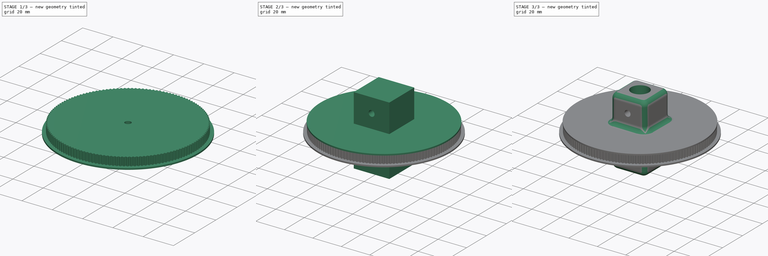
[diagram: build sequence overview — one tinted view per stage of 3, left to right]
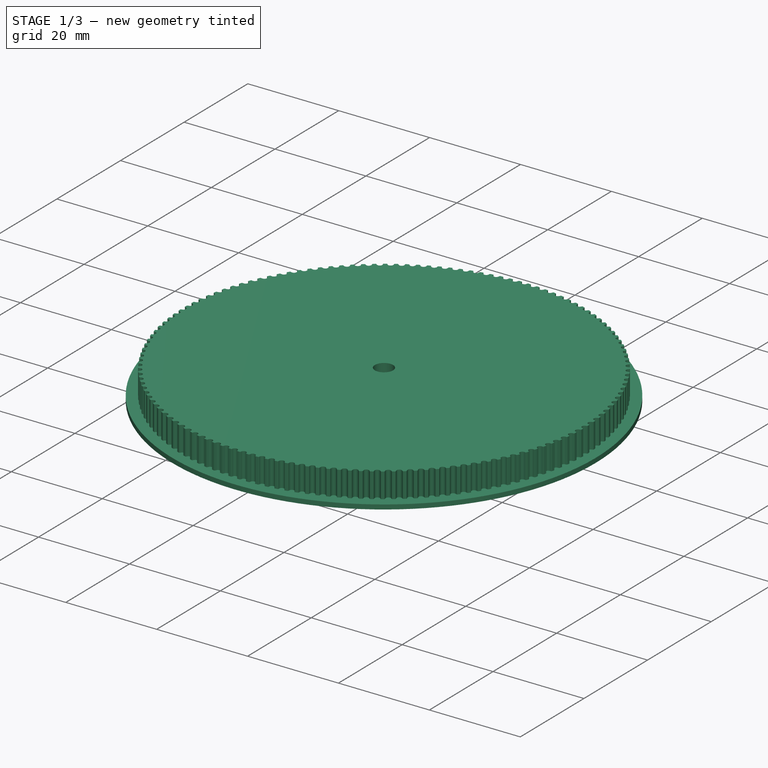
[diagram: stage 1 of 3 — iso view after this stage's code; geometry added in this stage tinted green]
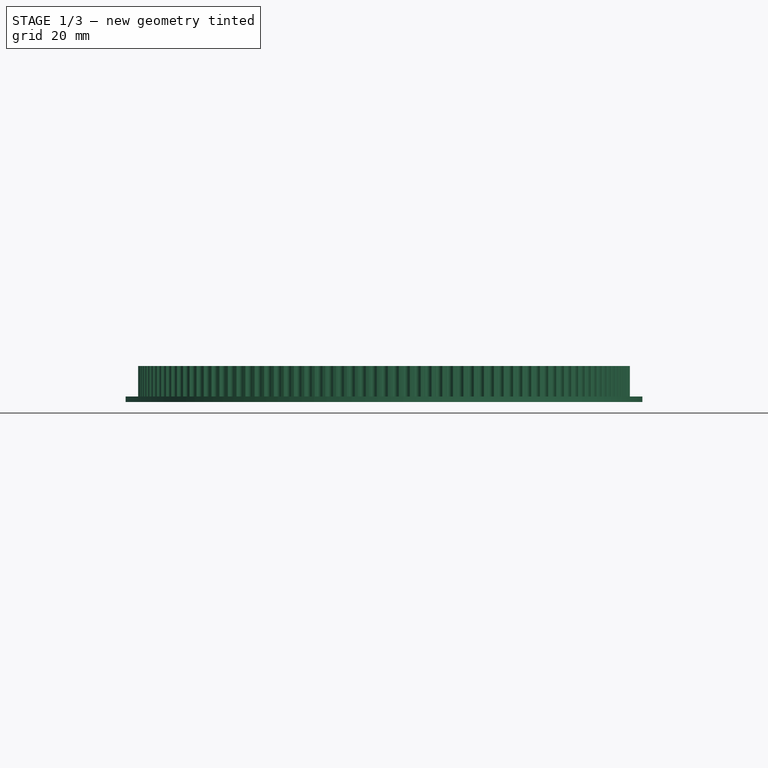
[diagram: stage 1 of 3 — front view after this stage's code; geometry added in this stage tinted green]
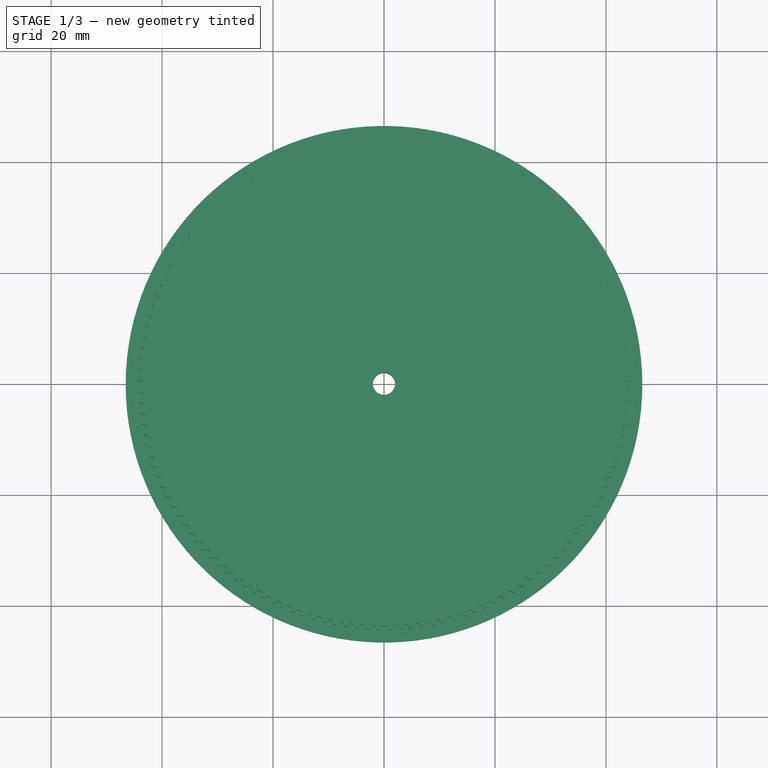
[diagram: stage 1 of 3 — top view after this stage's code; geometry added in this stage tinted green]
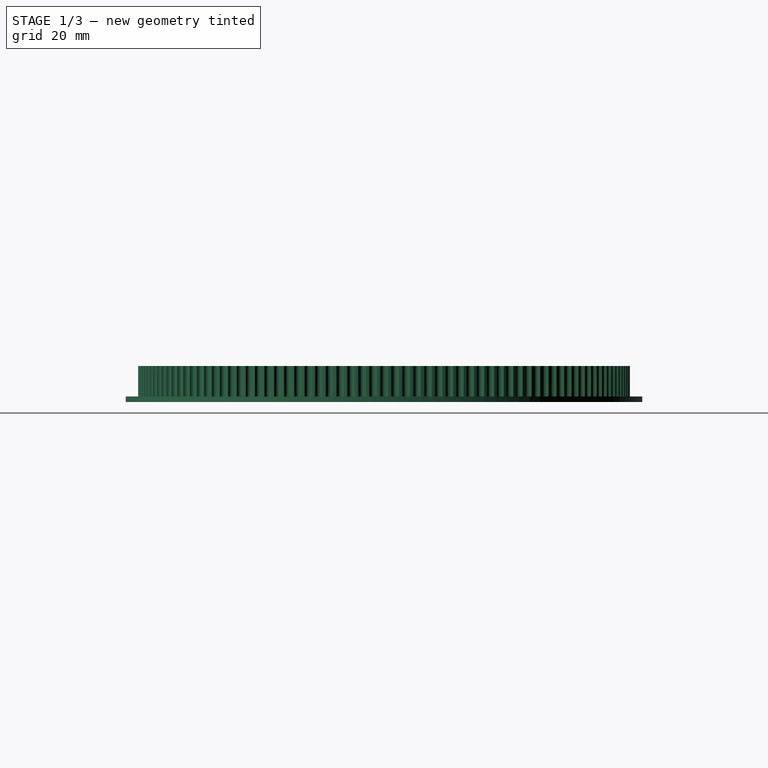
[diagram: stage 1 of 3 — right view after this stage's code; geometry added in this stage tinted green]
FCSTD DOCUMENT  (FreeCAD 0.18R16145 (Git))
Label: 140_tooth_GT2_with_proper_support
License: All rights reserved
LicenseURL: http://en.wikipedia.org/wiki/All_rights_reserved
objects: Sketcher::SketchObject×6, PartDesign::Pad×4, PartDesign::Pocket×2, PartDesign::Fillet×1, PartDesign::Body×1
note: 20 computed .brp shape members not serialized (recipe doc carries the construction recipe); baked Part::Feature solids carry a one-line shape summary decoded from their .brp

FEATURE [Sketcher::SketchObject] SketchGear
  MapMode = 5
  Support = -> [XY_Plane]
  sketch-geometry (841):
    g0: ArcOfCircle CenterX=44.1594 CenterY=-0.75 CenterZ=0 NormalX=0 NormalY=0 NormalZ=1 AngleXU=1.26e-14 Radius=0.15 StartAngle=0 EndAngle=1.5708
    g1: ArcOfCircle CenterX=44.5054 CenterY=0.82798 CenterZ=0 NormalX=0 NormalY=0 NormalZ=-1 AngleXU=-1.3331 Radius=1.46929 StartAngle=0 EndAngle=0.255762
    g2: ArcOfCircle CenterX=44.1187 CenterY=0 CenterZ=0 NormalX=0 NormalY=0 NormalZ=-1 AngleXU=-0.984764 Radius=0.559359 StartAngle=0 EndAngle=1.96953
    g3: ArcOfCircle CenterX=44.5054 CenterY=-0.82798 CenterZ=0 NormalX=0 NormalY=0 NormalZ=-1 AngleXU=1.07734 Radius=1.46929 StartAngle=0 EndAngle=0.255762
    g4: ArcOfCircle CenterX=44.1594 CenterY=0.75 CenterZ=0 NormalX=0 NormalY=0 NormalZ=1 AngleXU=-1.5708 Radius=0.15 StartAngle=0 EndAngle=1.5708
    g5: LineSegment StartX=44.3094 StartY=0.75 StartZ=0 EndX=44.2984 EndY=1.23869 EndZ=0
    g6: ArcOfCircle CenterX=44.1486 CenterY=1.23196 CenterZ=0 NormalX=0 NormalY=0 NormalZ=1 AngleXU=0.0448799 Radius=0.15 StartAngle=0 EndAngle=1.5708
    g7: ArcOfCircle CenterX=44.4234 CenterY=2.82387 CenterZ=0 NormalX=0 NormalY=0 NormalZ=-1 AngleXU=-1.37798 Radius=1.46929 StartAngle=0 EndAngle=0.255762
    g8: ArcOfCircle CenterX=44.0743 CenterY=1.97938 CenterZ=0 NormalX=0 NormalY=0 NormalZ=-1 AngleXU=-1.02964 Radius=0.559359 StartAngle=0 EndAngle=1.96953
    g9: ArcOfCircle CenterX=44.4977 CenterY=1.16958 CenterZ=0 NormalX=0 NormalY=0 NormalZ=-1 AngleXU=1.03246 Radius=1.46929 StartAngle=0 EndAngle=0.255762
    g10: ArcOfCircle CenterX=44.0813 CenterY=2.73045 CenterZ=0 NormalX=0 NormalY=0 NormalZ=1 AngleXU=-1.52592 Radius=0.15 StartAngle=0 EndAngle=1.5708
    g11: LineSegment StartX=44.2311 StartY=2.73718 StartZ=0 EndX=44.1982 EndY=3.22488 EndZ=0
    g12: ArcOfCircle CenterX=44.0488 CenterY=3.21144 CenterZ=0 NormalX=0 NormalY=0 NormalZ=1 AngleXU=0.0897598 Radius=0.15 StartAngle=0 EndAngle=1.5708
    g13: ArcOfCircle CenterX=44.252 CenterY=4.81408 CenterZ=0 NormalX=0 NormalY=0 NormalZ=-1 AngleXU=-1.42286 Radius=1.46929 StartAngle=0 EndAngle=0.255762
    g14: ArcOfCircle CenterX=43.9411 CenterY=3.95477 CenterZ=0 NormalX=0 NormalY=0 NormalZ=-1 AngleXU=-1.07452 Radius=0.559359 StartAngle=0 EndAngle=1.96953
    g15: ArcOfCircle CenterX=44.4004 CenterY=3.16478 CenterZ=0 NormalX=0 NormalY=0 NormalZ=-1 AngleXU=0.987578 Radius=1.46929 StartAngle=0 EndAngle=0.255762
    g16: ArcOfCircle CenterX=43.9144 CenterY=4.7054 CenterZ=0 NormalX=0 NormalY=0 NormalZ=1 AngleXU=-1.48104 Radius=0.15 StartAngle=0 EndAngle=1.5708
    g17: LineSegment StartX=44.0638 StartY=4.71884 StartZ=0 EndX=44.009 EndY=5.20458 EndZ=0
    g18: ArcOfCircle CenterX=43.8604 CenterY=5.18445 CenterZ=0 NormalX=0 NormalY=0 NormalZ=1 AngleXU=0.13464 Radius=0.15 StartAngle=0 EndAngle=1.5708
    g19: ArcOfCircle CenterX=43.9914 CenterY=6.79459 CenterZ=0 NormalX=0 NormalY=0 NormalZ=-1 AngleXU=-1.46774 Radius=1.46929 StartAngle=0 EndAngle=0.255762
    g20: ArcOfCircle CenterX=43.7195 CenterY=5.9222 CenterZ=0 NormalX=0 NormalY=0 NormalZ=-1 AngleXU=-1.1194 Radius=0.559359 StartAngle=0 EndAngle=1.96953
    g21: ArcOfCircle CenterX=44.2137 CenterY=5.15361 CenterZ=0 NormalX=0 NormalY=0 NormalZ=-1 AngleXU=0.942698 Radius=1.46929 StartAngle=0 EndAngle=0.255762
    g22: ArcOfCircle CenterX=43.6591 CenterY=6.67087 CenterZ=0 NormalX=0 NormalY=0 NormalZ=1 AngleXU=-1.43616 Radius=0.15 StartAngle=0 EndAngle=1.5708
    g23: LineSegment StartX=43.8077 StartY=6.69101 StartZ=0 EndX=43.7312 EndY=7.1738 EndZ=0
    g24: ArcOfCircle CenterX=43.5836 CenterY=7.14702 CenterZ=0 NormalX=0 NormalY=0 NormalZ=1 AngleXU=0.17952 Radius=0.15 StartAngle=0 EndAngle=1.5708
    g25: ArcOfCircle CenterX=43.6423 CenterY=8.76141 CenterZ=0 NormalX=0 NormalY=0 NormalZ=-1 AngleXU=-1.51262 Radius=1.46929 StartAngle=0 EndAngle=0.255762
    g26: ArcOfCircle CenterX=43.4097 CenterY=7.87771 CenterZ=0 NormalX=0 NormalY=0 NormalZ=-1 AngleXU=-1.16428 Radius=0.559359 StartAngle=0 EndAngle=1.96953
    g27: ArcOfCircle CenterX=43.938 CenterY=7.13206 CenterZ=0 NormalX=0 NormalY=0 NormalZ=-1 AngleXU=0.897818 Radius=1.46929 StartAngle=0 EndAngle=0.255762
    g28: ArcOfCircle CenterX=43.3158 CenterY=8.62291 CenterZ=0 NormalX=0 NormalY=0 NormalZ=1 AngleXU=-1.39128 Radius=0.15 StartAngle=0 EndAngle=1.5708
    g29: LineSegment StartX=43.4634 StartY=8.64969 StartZ=0 EndX=43.3653 EndY=9.12857 EndZ=0
    g30: ArcOfCircle CenterX=43.2191 CenterY=9.09519 CenterZ=0 NormalX=0 NormalY=0 NormalZ=1 AngleXU=0.224399 Radius=0.15 StartAngle=0 EndAngle=1.5708
    g31: ArcOfCircle CenterX=43.2053 CenterY=10.7106 CenterZ=0 NormalX=0 NormalY=0 NormalZ=-1 AngleXU=-1.5575 Radius=1.46929 StartAngle=0 EndAngle=0.255762
    g32: ArcOfCircle CenterX=43.0126 CenterY=9.81734 CenterZ=0 NormalX=0 NormalY=0 NormalZ=-1 AngleXU=-1.20916 Radius=0.559359 StartAngle=0 EndAngle=1.96953
    g33: ArcOfCircle CenterX=43.5738 CenterY=9.09615 CenterZ=0 NormalX=0 NormalY=0 NormalZ=-1 AngleXU=0.852938 Radius=1.46929 StartAngle=0 EndAngle=0.255762
    g34: ArcOfCircle CenterX=42.8853 CenterY=10.5576 CenterZ=0 NormalX=0 NormalY=0 NormalZ=1 AngleXU=-1.3464 Radius=0.15 StartAngle=0 EndAngle=1.5708
    g35: LineSegment StartX=43.0316 StartY=10.591 StartZ=0 EndX=42.9121 EndY=11.065 EndZ=0
    g36: ArcOfCircle CenterX=42.7675 CenterY=11.0251 CenterZ=0 NormalX=0 NormalY=0 NormalZ=1 AngleXU=0.269279 Radius=0.15 StartAngle=0 EndAngle=1.5708
    g37: ArcOfCircle CenterX=42.6812 CenterY=12.6382 CenterZ=0 NormalX=0 NormalY=0 NormalZ=-1 AngleXU=-1.60238 Radius=1.46929 StartAngle=0 EndAngle=0.255762
    g38: ArcOfCircle CenterX=42.5288 CenterY=11.7372 CenterZ=0 NormalX=0 NormalY=0 NormalZ=-1 AngleXU=-1.25404 Radius=0.559359 StartAngle=0 EndAngle=1.96953
    g39: ArcOfCircle CenterX=43.1218 CenterY=11.0419 CenterZ=0 NormalX=0 NormalY=0 NormalZ=-1 AngleXU=0.808058 Radius=1.46929 StartAngle=0 EndAngle=0.255762
    g40: ArcOfCircle CenterX=42.3685 CenterY=12.471 CenterZ=0 NormalX=0 NormalY=0 NormalZ=1 AngleXU=-1.30152 Radius=0.15 StartAngle=0 EndAngle=1.5708
    g41: LineSegment StartX=42.5131 StartY=12.5109 StartZ=0 EndX=42.3725 EndY=12.9791 EndZ=0
    g42: ArcOfCircle CenterX=42.2298 CenterY=12.9327 CenterZ=0 NormalX=0 NormalY=0 NormalZ=1 AngleXU=0.314159 Radius=0.15 StartAngle=0 EndAngle=1.5708
    g43: ArcOfCircle CenterX=42.0712 CenterY=14.5404 CenterZ=0 NormalX=0 NormalY=0 NormalZ=-1 AngleXU=-1.64726 Radius=1.46929 StartAngle=0 EndAngle=0.255762
    g44: ArcOfCircle CenterX=41.9594 CenterY=13.6334 CenterZ=0 NormalX=0 NormalY=0 NormalZ=-1 AngleXU=-1.29892 Radius=0.559359 StartAngle=0 EndAngle=1.96953
    g45: ArcOfCircle CenterX=42.583 CenterY=12.9655 CenterZ=0 NormalX=0 NormalY=0 NormalZ=-1 AngleXU=0.763178 Radius=1.46929 StartAngle=0 EndAngle=0.255762
    g46: ArcOfCircle CenterX=41.7663 CenterY=14.3593 CenterZ=0 NormalX=0 NormalY=0 NormalZ=1 AngleXU=-1.25664 Radius=0.15 StartAngle=0 EndAngle=1.5708
    g47: LineSegment StartX=41.909 StartY=14.4056 StartZ=0 EndX=41.7475 EndY=14.867 EndZ=0
    g48: ArcOfCircle CenterX=41.6071 CenterY=14.8143 CenterZ=0 NormalX=0 NormalY=0 NormalZ=1 AngleXU=0.359039 Radius=0.15 StartAngle=0 EndAngle=1.5708
    g49: ArcOfCircle CenterX=41.3765 CenterY=16.4132 CenterZ=0 NormalX=0 NormalY=0 NormalZ=-1 AngleXU=-1.69214 Radius=1.46929 StartAngle=0 EndAngle=0.255762
    g50: ArcOfCircle CenterX=41.3055 CenterY=15.5022 CenterZ=0 NormalX=0 NormalY=0 NormalZ=-1 AngleXU=-1.3438 Radius=0.559359 StartAngle=0 EndAngle=1.96953
    g51: ArcOfCircle CenterX=41.9584 CenterY=14.8629 CenterZ=0 NormalX=0 NormalY=0 NormalZ=-1 AngleXU=0.718298 Radius=1.46929 StartAngle=0 EndAngle=0.255762
    g52: ArcOfCircle CenterX=41.08 CenterY=16.2187 CenterZ=0 NormalX=0 NormalY=0 NormalZ=1 AngleXU=-1.21176 Radius=0.15 StartAngle=0 EndAngle=1.5708
    g53: LineSegment StartX=41.2205 StartY=16.2714 StartZ=0 EndX=41.0385 EndY=16.7251 EndZ=0
    g54: ArcOfCircle CenterX=40.9005 CenterY=16.6661 CenterZ=0 NormalX=0 NormalY=0 NormalZ=1 AngleXU=0.403919 Radius=0.15 StartAngle=0 EndAngle=1.5708
    g55: ArcOfCircle CenterX=40.5985 CenterY=18.2531 CenterZ=0 NormalX=0 NormalY=0 NormalZ=-1 AngleXU=-1.73702 Radius=1.46929 StartAngle=0 EndAngle=0.255762
    g56: ArcOfCircle CenterX=40.5684 CenterY=17.3398 CenterZ=0 NormalX=0 NormalY=0 NormalZ=-1 AngleXU=-1.38868 Radius=0.559359 StartAngle=0 EndAngle=1.96953
    g57: ArcOfCircle CenterX=41.2493 CenterY=16.7304 CenterZ=0 NormalX=0 NormalY=0 NormalZ=-1 AngleXU=0.673418 Radius=1.46929 StartAngle=0 EndAngle=0.255762
    g58: ArcOfCircle CenterX=40.311 CenterY=18.0454 CenterZ=0 NormalX=0 NormalY=0 NormalZ=1 AngleXU=-1.16688 Radius=0.15 StartAngle=0 EndAngle=1.5708
    g59: LineSegment StartX=40.4489 StartY=18.1043 StartZ=0 EndX=40.2468 EndY=18.5494 EndZ=0
    g60: ArcOfCircle CenterX=40.1116 CenterY=18.4843 CenterZ=0 NormalX=0 NormalY=0 NormalZ=1 AngleXU=0.448799 Radius=0.15 StartAngle=0 EndAngle=1.5708
    g61: ArcOfCircle CenterX=39.7387 CenterY=20.0561 CenterZ=0 NormalX=0 NormalY=0 NormalZ=-1 AngleXU=-1.7819 Radius=1.46929 StartAngle=0 EndAngle=0.255762
    g62: ArcOfCircle CenterX=39.7496 CenterY=19.1424 CenterZ=0 NormalX=0 NormalY=0 NormalZ=-1 AngleXU=-1.43356 Radius=0.559359 StartAngle=0 EndAngle=1.96953
    g63: ArcOfCircle CenterX=40.4572 CenterY=18.5642 CenterZ=0 NormalX=0 NormalY=0 NormalZ=-1 AngleXU=0.628539 Radius=1.46929 StartAngle=0 EndAngle=0.255762
    g64: ArcOfCircle CenterX=39.4608 CenterY=19.8358 CenterZ=0 NormalX=0 NormalY=0 NormalZ=1 AngleXU=-1.122 Radius=0.15 StartAngle=0 EndAngle=1.5708
    g65: LineSegment StartX=39.596 StartY=19.9008 StartZ=0 EndX=39.374 EndY=20.3364 EndZ=0
    g66: ArcOfCircle CenterX=39.242 CenterY=20.2653 CenterZ=0 NormalX=0 NormalY=0 NormalZ=1 AngleXU=0.493679 Radius=0.15 StartAngle=0 EndAngle=1.5708
    g67: ArcOfCircle CenterX=38.7989 CenterY=21.8188 CenterZ=0 NormalX=0 NormalY=0 NormalZ=-1 AngleXU=-1.82678 Radius=1.46929 StartAngle=0 EndAngle=0.255762
    g68: ArcOfCircle CenterX=38.8508 CenterY=20.9065 CenterZ=0 NormalX=0 NormalY=0 NormalZ=-1 AngleXU=-1.47844 Radius=0.559359 StartAngle=0 EndAngle=1.96953
    g69: ArcOfCircle CenterX=39.5836 CenterY=20.3606 CenterZ=0 NormalX=0 NormalY=0 NormalZ=-1 AngleXU=0.583659 Radius=1.46929 StartAngle=0 EndAngle=0.255762
    g70: ArcOfCircle CenterX=38.5312 CenterY=21.5862 CenterZ=0 NormalX=0 NormalY=0 NormalZ=1 AngleXU=-1.07712 Radius=0.15 StartAngle=0 EndAngle=1.5708
    g71: LineSegment StartX=38.6632 StartY=21.6573 StartZ=0 EndX=38.422 EndY=22.0824 EndZ=0
    g72: ArcOfCircle CenterX=38.2932 CenterY=22.0055 CenterZ=0 NormalX=0 NormalY=0 NormalZ=1 AngleXU=0.538559 Radius=0.15 StartAngle=0 EndAngle=1.5708
    g73: ArcOfCircle CenterX=37.7809 CenterY=23.5375 CenterZ=0 NormalX=0 NormalY=0 NormalZ=-1 AngleXU=-1.87166 Radius=1.46929 StartAngle=0 EndAngle=0.255762
    g74: ArcOfCircle CenterX=37.8737 CenterY=22.6285 CenterZ=0 NormalX=0 NormalY=0 NormalZ=-1 AngleXU=-1.52332 Radius=0.559359 StartAngle=0 EndAngle=1.96953
    g75: ArcOfCircle CenterX=38.6302 CenterY=22.116 CenterZ=0 NormalX=0 NormalY=0 NormalZ=-1 AngleXU=0.538779 Radius=1.46929 StartAngle=0 EndAngle=0.255762
    g76: ArcOfCircle CenterX=37.5239 CenterY=23.2932 CenterZ=0 NormalX=0 NormalY=0 NormalZ=1 AngleXU=-1.03224 Radius=0.15 StartAngle=0 EndAngle=1.5708
    g77: LineSegment StartX=37.6527 StartY=23.3701 StartZ=0 EndX=37.3926 EndY=23.784 EndZ=0
    g78: ArcOfCircle CenterX=37.2674 CenterY=23.7013 CenterZ=0 NormalX=0 NormalY=0 NormalZ=1 AngleXU=0.583439 Radius=0.15 StartAngle=0 EndAngle=1.5708
    g79: ArcOfCircle CenterX=36.6868 CenterY=25.2089 CenterZ=0 NormalX=0 NormalY=0 NormalZ=-1 AngleXU=-1.91654 Radius=1.46929 StartAngle=0 EndAngle=0.255762
    g80: ArcOfCircle CenterX=36.8203 CenterY=24.3049 CenterZ=0 NormalX=0 NormalY=0 NormalZ=-1 AngleXU=-1.5682 Radius=0.559359 StartAngle=0 EndAngle=1.96953
    g81: ArcOfCircle CenterX=37.5991 CenterY=23.8269 CenterZ=0 NormalX=0 NormalY=0 NormalZ=-1 AngleXU=0.493899 Radius=1.46929 StartAngle=0 EndAngle=0.255762
    g82: ArcOfCircle CenterX=36.4411 CenterY=24.9532 CenterZ=0 NormalX=0 NormalY=0 NormalZ=1 AngleXU=-0.987358 Radius=0.15 StartAngle=0 EndAngle=1.5708
    g83: LineSegment StartX=36.5663 StartY=25.0358 StartZ=0 EndX=36.2879 EndY=25.4376 EndZ=0
    g84: ArcOfCircle CenterX=36.1665 CenterY=25.3495 CenterZ=0 NormalX=0 NormalY=0 NormalZ=1 AngleXU=0.628319 Radius=0.15 StartAngle=0 EndAngle=1.5708
    g85: ArcOfCircle CenterX=35.5189 CenterY=26.8294 CenterZ=0 NormalX=0 NormalY=0 NormalZ=-1 AngleXU=-1.96142 Radius=1.46929 StartAngle=0 EndAngle=0.255762
    g86: ArcOfCircle CenterX=35.6928 CenterY=25.9323 CenterZ=0 NormalX=0 NormalY=0 NormalZ=-1 AngleXU=-1.61308 Radius=0.559359 StartAngle=0 EndAngle=1.96953
    g87: ArcOfCircle CenterX=36.4923 CenterY=25.4897 CenterZ=0 NormalX=0 NormalY=0 NormalZ=-1 AngleXU=0.449019 Radius=1.46929 StartAngle=0 EndAngle=0.255762
    g88: ArcOfCircle CenterX=35.2849 CenterY=26.563 CenterZ=0 NormalX=0 NormalY=0 NormalZ=1 AngleXU=-0.942478 Radius=0.15 StartAngle=0 EndAngle=1.5708
    g89: LineSegment StartX=35.4062 StartY=26.6512 StartZ=0 EndX=35.1101 EndY=27.0401 EndZ=0
    g90: ArcOfCircle CenterX=34.9928 CenterY=26.9466 CenterZ=0 NormalX=0 NormalY=0 NormalZ=1 AngleXU=0.673198 Radius=0.15 StartAngle=0 EndAngle=1.5708
    g91: ArcOfCircle CenterX=34.2794 CenterY=28.396 CenterZ=0 NormalX=0 NormalY=0 NormalZ=-1 AngleXU=-2.0063 Radius=1.46929 StartAngle=0 EndAngle=0.255762
    g92: ArcOfCircle CenterX=34.4934 CenterY=27.5076 CenterZ=0 NormalX=0 NormalY=0 NormalZ=-1 AngleXU=-1.65796 Radius=0.559359 StartAngle=0 EndAngle=1.96953
    g93: ArcOfCircle CenterX=35.3119 CenterY=27.1013 CenterZ=0 NormalX=0 NormalY=0 NormalZ=-1 AngleXU=0.404139 Radius=1.46929 StartAngle=0 EndAngle=0.255762
    g94: ArcOfCircle CenterX=34.0576 CenterY=28.1193 CenterZ=0 NormalX=0 NormalY=0 NormalZ=1 AngleXU=-0.897598 Radius=0.15 StartAngle=0 EndAngle=1.5708
    g95: LineSegment StartX=34.1749 StartY=28.2128 StartZ=0 EndX=33.8616 EndY=28.5881 EndZ=0
    g96: ArcOfCircle CenterX=33.7486 CenterY=28.4894 CenterZ=0 NormalX=0 NormalY=0 NormalZ=1 AngleXU=0.718078 Radius=0.15 StartAngle=0 EndAngle=1.5708
    g97: ArcOfCircle CenterX=32.9709 CenterY=29.9053 CenterZ=0 NormalX=0 NormalY=0 NormalZ=-1 AngleXU=-2.05118 Radius=1.46929 StartAngle=0 EndAngle=0.255762
    g98: ArcOfCircle CenterX=33.2246 CenterY=29.0274 CenterZ=0 NormalX=0 NormalY=0 NormalZ=-1 AngleXU=-1.70284 Radius=0.559359 StartAngle=0 EndAngle=1.96953
    g99: ArcOfCircle CenterX=34.0605 CenterY=28.6583 CenterZ=0 NormalX=0 NormalY=0 NormalZ=-1 AngleXU=0.359259 Radius=1.46929 StartAngle=0 EndAngle=0.255762
    g100: ArcOfCircle CenterX=32.7617 CenterY=29.619 CenterZ=0 NormalX=0 NormalY=0 NormalZ=1 AngleXU=-0.852718 Radius=0.15 StartAngle=0 EndAngle=1.5708
    g101: LineSegment StartX=32.8747 StartY=29.7177 StartZ=0 EndX=32.5449 EndY=30.0785 EndZ=0
    g102: ArcOfCircle CenterX=32.4365 CenterY=29.9748 CenterZ=0 NormalX=0 NormalY=0 NormalZ=1 AngleXU=0.762958 Radius=0.15 StartAngle=0 EndAngle=1.5708
    g103: ArcOfCircle CenterX=31.5961 CenterY=31.3544 CenterZ=0 NormalX=0 NormalY=0 NormalZ=-1 AngleXU=-2.09606 Radius=1.46929 StartAngle=0 EndAngle=0.255762
    g104: ArcOfCircle CenterX=31.8888 CenterY=30.4888 CenterZ=0 NormalX=0 NormalY=0 NormalZ=-1 AngleXU=-1.74772 Radius=0.559359 StartAngle=0 EndAngle=1.96953
    g105: ArcOfCircle CenterX=32.7404 CenterY=30.1575 CenterZ=0 NormalX=0 NormalY=0 NormalZ=-1 AngleXU=0.314379 Radius=1.46929 StartAngle=0 EndAngle=0.255762
    g106: ArcOfCircle CenterX=31.3999 CenterY=31.059 CenterZ=0 NormalX=0 NormalY=0 NormalZ=1 AngleXU=-0.807838 Radius=0.15 StartAngle=0 EndAngle=1.5708
    g107: LineSegment StartX=31.5083 StartY=31.1627 StartZ=0 EndX=31.1627 EndY=31.5083 EndZ=0
    g108: ArcOfCircle CenterX=31.059 CenterY=31.3999 CenterZ=0 NormalX=0 NormalY=0 NormalZ=1 AngleXU=0.807838 Radius=0.15 StartAngle=0 EndAngle=1.5708
    g109: ArcOfCircle CenterX=30.1575 CenterY=32.7404 CenterZ=0 NormalX=0 NormalY=0 NormalZ=-1 AngleXU=-2.14094 Radius=1.46929 StartAngle=0 EndAngle=0.255762
    g110: ArcOfCircle CenterX=30.4888 CenterY=31.8888 CenterZ=0 NormalX=0 NormalY=0 NormalZ=-1 AngleXU=-1.7926 Radius=0.559359 StartAngle=0 EndAngle=1.96953
    g111: ArcOfCircle CenterX=31.3544 CenterY=31.5961 CenterZ=0 NormalX=0 NormalY=0 NormalZ=-1 AngleXU=0.269499 Radius=1.46929 StartAngle=0 EndAngle=0.255762
    g112: ArcOfCircle CenterX=29.9748 CenterY=32.4365 CenterZ=0 NormalX=0 NormalY=0 NormalZ=1 AngleXU=-0.762958 Radius=0.15 StartAngle=0 EndAngle=1.5708
    g113: LineSegment StartX=30.0785 StartY=32.5449 StartZ=0 EndX=29.7177 EndY=32.8747 EndZ=0
    g114: ArcOfCircle CenterX=29.619 CenterY=32.7617 CenterZ=0 NormalX=0 NormalY=0 NormalZ=1 AngleXU=0.852718 Radius=0.15 StartAngle=0 EndAngle=1.5708
    g115: ArcOfCircle CenterX=28.6583 CenterY=34.0605 CenterZ=0 NormalX=0 NormalY=0 NormalZ=-1 AngleXU=-2.18582 Radius=1.46929 StartAngle=0 EndAngle=0.255762
    g116: ArcOfCircle CenterX=29.0274 CenterY=33.2246 CenterZ=0 NormalX=0 NormalY=0 NormalZ=-1 AngleXU=-1.83748 Radius=0.559359 StartAngle=0 EndAngle=1.96953
    g117: ArcOfCircle CenterX=29.9053 CenterY=32.9709 CenterZ=0 NormalX=0 NormalY=0 NormalZ=-1 AngleXU=0.224619 Radius=1.46929 StartAngle=0 EndAngle=0.255762
    g118: ArcOfCircle CenterX=28.4894 CenterY=33.7486 CenterZ=0 NormalX=0 NormalY=0 NormalZ=1 AngleXU=-0.718078 Radius=0.15 StartAngle=0 EndAngle=1.5708
    g119: LineSegment StartX=28.5881 StartY=33.8616 StartZ=0 EndX=28.2128 EndY=34.1749 EndZ=0
    g120: ArcOfCircle CenterX=28.1193 CenterY=34.0576 CenterZ=0 NormalX=0 NormalY=0 NormalZ=1 AngleXU=0.897598 Radius=0.15 StartAngle=0 EndAngle=1.5708
    g121: ArcOfCircle CenterX=27.1013 CenterY=35.3119 CenterZ=0 NormalX=0 NormalY=0 NormalZ=-1 AngleXU=-2.2307 Radius=1.46929 StartAngle=0 EndAngle=0.255762
    g122: ArcOfCircle CenterX=27.5076 CenterY=34.4934 CenterZ=0 NormalX=0 NormalY=0 NormalZ=-1 AngleXU=-1.88236 Radius=0.559359 StartAngle=0 EndAngle=1.96953
    g123: ArcOfCircle CenterX=28.396 CenterY=34.2794 CenterZ=0 NormalX=0 NormalY=0 NormalZ=-1 AngleXU=0.17974 Radius=1.46929 StartAngle=0 EndAngle=0.255762
    g124: ArcOfCircle CenterX=26.9466 CenterY=34.9928 CenterZ=0 NormalX=0 NormalY=0 NormalZ=1 AngleXU=-0.673198 Radius=0.15 StartAngle=0 EndAngle=1.5708
    g125: LineSegment StartX=27.0401 StartY=35.1101 StartZ=0 EndX=26.6512 EndY=35.4062 EndZ=0
    g126: ArcOfCircle CenterX=26.563 CenterY=35.2849 CenterZ=0 NormalX=0 NormalY=0 NormalZ=1 AngleXU=0.942478 Radius=0.15 StartAngle=0 EndAngle=1.5708
    g127: ArcOfCircle CenterX=25.4897 CenterY=36.4923 CenterZ=0 NormalX=0 NormalY=0 NormalZ=-1 AngleXU=-2.27558 Radius=1.46929 StartAngle=0 EndAngle=0.255762
    g128: ArcOfCircle CenterX=25.9323 CenterY=35.6928 CenterZ=0 NormalX=0 NormalY=0 NormalZ=-1 AngleXU=-1.92724 Radius=0.559359 StartAngle=0 EndAngle=1.96953
    g129: ArcOfCircle CenterX=26.8294 CenterY=35.5189 CenterZ=0 NormalX=0 NormalY=0 NormalZ=-1 AngleXU=0.13486 Radius=1.46929 StartAngle=0 EndAngle=0.255762
    g130: ArcOfCircle CenterX=25.3495 CenterY=36.1665 CenterZ=0 NormalX=0 NormalY=0 NormalZ=1 AngleXU=-0.628319 Radius=0.15 StartAngle=0 EndAngle=1.5708
    g131: LineSegment StartX=25.4376 StartY=36.2879 StartZ=0 EndX=25.0358 EndY=36.5663 EndZ=0
    g132: ArcOfCircle CenterX=24.9532 CenterY=36.4411 CenterZ=0 NormalX=0 NormalY=0 NormalZ=1 AngleXU=0.987358 Radius=0.15 StartAngle=0 EndAngle=1.5708
    g133: ArcOfCircle CenterX=23.8269 CenterY=37.5991 CenterZ=0 NormalX=0 NormalY=0 NormalZ=-1 AngleXU=-2.32046 Radius=1.46929 StartAngle=0 EndAngle=0.255762
    g134: ArcOfCircle CenterX=24.3049 CenterY=36.8203 CenterZ=0 NormalX=0 NormalY=0 NormalZ=-1 AngleXU=-1.97212 Radius=0.559359 StartAngle=0 EndAngle=1.96953
    g135: ArcOfCircle CenterX=25.2089 CenterY=36.6868 CenterZ=0 NormalX=0 NormalY=0 NormalZ=-1 AngleXU=0.0899798 Radius=1.46929 StartAngle=0 EndAngle=0.255762
    g136: ArcOfCircle CenterX=23.7013 CenterY=37.2674 CenterZ=0 NormalX=0 NormalY=0 NormalZ=1 AngleXU=-0.583439 Radius=0.15 StartAngle=0 EndAngle=1.5708
    g137: LineSegment StartX=23.784 StartY=37.3926 StartZ=0 EndX=23.3701 EndY=37.6527 EndZ=0
    g138: ArcOfCircle CenterX=23.2932 CenterY=37.5239 CenterZ=0 NormalX=0 NormalY=0 NormalZ=1 AngleXU=1.03224 Radius=0.15 StartAngle=0 EndAngle=1.5708
    g139: ArcOfCircle CenterX=22.116 CenterY=38.6302 CenterZ=0 NormalX=0 NormalY=0 NormalZ=-1 AngleXU=-2.36534 Radius=1.46929 StartAngle=0 EndAngle=0.255762
    g140: ArcOfCircle CenterX=22.6285 CenterY=37.8737 CenterZ=0 NormalX=0 NormalY=0 NormalZ=-1 AngleXU=-2.017 Radius=0.559359 StartAngle=0 EndAngle=1.96953
    g141: ArcOfCircle CenterX=23.5375 CenterY=37.7809 CenterZ=0 NormalX=0 NormalY=0 NormalZ=-1 AngleXU=0.0450999 Radius=1.46929 StartAngle=0 EndAngle=0.255762
    g142: ArcOfCircle CenterX=22.0055 CenterY=38.2932 CenterZ=0 NormalX=0 NormalY=0 NormalZ=1 AngleXU=-0.538559 Radius=0.15 StartAngle=0 EndAngle=1.5708
    g143: LineSegment StartX=22.0824 StartY=38.422 StartZ=0 EndX=21.6573 EndY=38.6632 EndZ=0
    g144: ArcOfCircle CenterX=21.5862 CenterY=38.5312 CenterZ=0 NormalX=0 NormalY=0 NormalZ=1 AngleXU=1.07712 Radius=0.15 StartAngle=0 EndAngle=1.5708
    g145: ArcOfCircle CenterX=20.3606 CenterY=39.5836 CenterZ=0 NormalX=0 NormalY=0 NormalZ=-1 AngleXU=-2.41022 Radius=1.46929 StartAngle=0 EndAngle=0.255762
    g146: ArcOfCircle CenterX=20.9065 CenterY=38.8508 CenterZ=0 NormalX=0 NormalY=0 NormalZ=-1 AngleXU=-2.06188 Radius=0.559359 StartAngle=0 EndAngle=1.96953
    g147: ArcOfCircle CenterX=21.8188 CenterY=38.7989 CenterZ=0 NormalX=0 NormalY=0 NormalZ=-1 AngleXU=0.000220002 Radius=1.46929 StartAngle=0 EndAngle=0.255762
    g148: ArcOfCircle CenterX=20.2653 CenterY=39.242 CenterZ=0 NormalX=0 NormalY=0 NormalZ=1 AngleXU=-0.493679 Radius=0.15 StartAngle=0 EndAngle=1.5708
    g149: LineSegment StartX=20.3364 StartY=39.374 StartZ=0 EndX=19.9008 EndY=39.596 EndZ=0
    g150: ArcOfCircle CenterX=19.8358 CenterY=39.4608 CenterZ=0 NormalX=0 NormalY=0 NormalZ=1 AngleXU=1.122 Radius=0.15 StartAngle=0 EndAngle=1.5708
    g151: ArcOfCircle CenterX=18.5642 CenterY=40.4572 CenterZ=0 NormalX=0 NormalY=0 NormalZ=-1 AngleXU=-2.4551 Radius=1.46929 StartAngle=0 EndAngle=0.255762
    g152: ArcOfCircle CenterX=19.1424 CenterY=39.7496 CenterZ=0 NormalX=0 NormalY=0 NormalZ=-1 AngleXU=-2.10676 Radius=0.559359 StartAngle=0 EndAngle=1.96953
    g153: ArcOfCircle CenterX=20.0561 CenterY=39.7387 CenterZ=0 NormalX=0 NormalY=0 NormalZ=-1 AngleXU=-0.0446599 Radius=1.46929 StartAngle=0 EndAngle=0.255762
    g154: ArcOfCircle CenterX=18.4843 CenterY=40.1116 CenterZ=0 NormalX=0 NormalY=0 NormalZ=1 AngleXU=-0.448799 Radius=0.15 StartAngle=0 EndAngle=1.5708
    g155: LineSegment StartX=18.5494 StartY=40.2468 StartZ=0 EndX=18.1043 EndY=40.4489 EndZ=0
    g156: ArcOfCircle CenterX=18.0454 CenterY=40.311 CenterZ=0 NormalX=0 NormalY=0 NormalZ=1 AngleXU=1.16688 Radius=0.15 StartAngle=0 EndAngle=1.5708
    g157: ArcOfCircle CenterX=16.7304 CenterY=41.2493 CenterZ=0 NormalX=0 NormalY=0 NormalZ=-1 AngleXU=-2.49998 Radius=1.46929 StartAngle=0 EndAngle=0.255762
    g158: ArcOfCircle CenterX=17.3398 CenterY=40.5684 CenterZ=0 NormalX=0 NormalY=0 NormalZ=-1 AngleXU=-2.15164 Radius=0.559359 StartAngle=0 EndAngle=1.96953
    g159: ArcOfCircle CenterX=18.2531 CenterY=40.5985 CenterZ=0 NormalX=0 NormalY=0 NormalZ=-1 AngleXU=-0.0895398 Radius=1.46929 StartAngle=0 EndAngle=0.255762
    g160: ArcOfCircle CenterX=16.6661 CenterY=40.9005 CenterZ=0 NormalX=0 NormalY=0 NormalZ=1 AngleXU=-0.403919 Radius=0.15 StartAngle=0 EndAngle=1.5708
    g161: LineSegment StartX=16.7251 StartY=41.0385 StartZ=0 EndX=16.2714 EndY=41.2205 EndZ=0
    g162: ArcOfCircle CenterX=16.2187 CenterY=41.08 CenterZ=0 NormalX=0 NormalY=0 NormalZ=1 AngleXU=1.21176 Radius=0.15 StartAngle=0 EndAngle=1.5708
    g163: ArcOfCircle CenterX=14.8629 CenterY=41.9584 CenterZ=0 NormalX=0 NormalY=0 NormalZ=-1 AngleXU=-2.54486 Radius=1.46929 StartAngle=0 EndAngle=0.255762
    g164: ArcOfCircle CenterX=15.5022 CenterY=41.3055 CenterZ=0 NormalX=0 NormalY=0 NormalZ=-1 AngleXU=-2.19652 Radius=0.559359 StartAngle=0 EndAngle=1.96953
    g165: ArcOfCircle CenterX=16.4132 CenterY=41.3765 CenterZ=0 NormalX=0 NormalY=0 NormalZ=-1 AngleXU=-0.13442 Radius=1.46929 StartAngle=0 EndAngle=0.255762
    g166: ArcOfCircle CenterX=14.8143 CenterY=41.6071 CenterZ=0 NormalX=0 NormalY=0 NormalZ=1 AngleXU=-0.359039 Radius=0.15 StartAngle=0 EndAngle=1.5708
    g167: LineSegment StartX=14.867 StartY=41.7475 StartZ=0 EndX=14.4056 EndY=41.909 EndZ=0
    g168: ArcOfCircle CenterX=14.3593 CenterY=41.7663 CenterZ=0 NormalX=0 NormalY=0 NormalZ=1 AngleXU=1.25664 Radius=0.15 StartAngle=0 EndAngle=1.5708
    g169: ArcOfCircle CenterX=12.9655 CenterY=42.583 CenterZ=0 NormalX=0 NormalY=0 NormalZ=-1 AngleXU=-2.58974 Radius=1.46929 StartAngle=0 EndAngle=0.255762
    g170: ArcOfCircle CenterX=13.6334 CenterY=41.9594 CenterZ=0 NormalX=0 NormalY=0 NormalZ=-1 AngleXU=-2.2414 Radius=0.559359 StartAngle=0 EndAngle=1.96953
    g171: ArcOfCircle CenterX=14.5404 CenterY=42.0712 CenterZ=0 NormalX=0 NormalY=0 NormalZ=-1 AngleXU=-0.1793 Radius=1.46929 StartAngle=0 EndAngle=0.255762
    g172: ArcOfCircle CenterX=12.9327 CenterY=42.2298 CenterZ=0 NormalX=0 NormalY=0 NormalZ=1 AngleXU=-0.314159 Radius=0.15 StartAngle=0 EndAngle=1.5708
    g173: LineSegment StartX=12.9791 StartY=42.3725 StartZ=0 EndX=12.5109 EndY=42.5131 EndZ=0
    g174: ArcOfCircle CenterX=12.471 CenterY=42.3685 CenterZ=0 NormalX=0 NormalY=0 NormalZ=1 AngleXU=1.30152 Radius=0.15 StartAngle=0 EndAngle=1.5708
    g175: ArcOfCircle CenterX=11.0419 CenterY=43.1218 CenterZ=0 NormalX=0 NormalY=0 NormalZ=-1 AngleXU=-2.63462 Radius=1.46929 StartAngle=0 EndAngle=0.255762
    g176: ArcOfCircle CenterX=11.7372 CenterY=42.5288 CenterZ=0 NormalX=0 NormalY=0 NormalZ=-1 AngleXU=-2.28628 Radius=0.559359 StartAngle=0 EndAngle=1.96953
    g177: ArcOfCircle CenterX=12.6382 CenterY=42.6812 CenterZ=0 NormalX=0 NormalY=0 NormalZ=-1 AngleXU=-0.224179 Radius=1.46929 StartAngle=0 EndAngle=0.255762
    g178: ArcOfCircle CenterX=11.0251 CenterY=42.7675 CenterZ=0 NormalX=0 NormalY=0 NormalZ=1 AngleXU=-0.269279 Radius=0.15 StartAngle=0 EndAngle=1.5708
    g179: LineSegment StartX=11.065 StartY=42.9121 StartZ=0 EndX=10.591 EndY=43.0316 EndZ=0
    g180: ArcOfCircle CenterX=10.5576 CenterY=42.8853 CenterZ=0 NormalX=0 NormalY=0 NormalZ=1 AngleXU=1.3464 Radius=0.15 StartAngle=0 EndAngle=1.5708
    g181: ArcOfCircle CenterX=9.09615 CenterY=43.5738 CenterZ=0 NormalX=0 NormalY=0 NormalZ=-1 AngleXU=-2.6795 Radius=1.46929 StartAngle=0 EndAngle=0.255762
    g182: ArcOfCircle CenterX=9.81734 CenterY=43.0126 CenterZ=0 NormalX=0 NormalY=0 NormalZ=-1 AngleXU=-2.33116 Radius=0.559359 StartAngle=0 EndAngle=1.96953
    g183: ArcOfCircle CenterX=10.7106 CenterY=43.2053 CenterZ=0 NormalX=0 NormalY=0 NormalZ=-1 AngleXU=-0.269059 Radius=1.46929 StartAngle=0 EndAngle=0.255762
    g184: ArcOfCircle CenterX=9.09519 CenterY=43.2191 CenterZ=0 NormalX=0 NormalY=0 NormalZ=1 AngleXU=-0.224399 Radius=0.15 StartAngle=0 EndAngle=1.5708
    g185: LineSegment StartX=9.12857 StartY=43.3653 StartZ=0 EndX=8.64969 EndY=43.4634 EndZ=0
    g186: ArcOfCircle CenterX=8.62291 CenterY=43.3158 CenterZ=0 NormalX=0 NormalY=0 NormalZ=1 AngleXU=1.39128 Radius=0.15 StartAngle=0 EndAngle=1.5708
    g187: ArcOfCircle CenterX=7.13206 CenterY=43.938 CenterZ=0 NormalX=0 NormalY=0 NormalZ=-1 AngleXU=-2.72438 Radius=1.46929 StartAngle=0 EndAngle=0.255762
    g188: ArcOfCircle CenterX=7.87771 CenterY=43.4097 CenterZ=0 NormalX=0 NormalY=0 NormalZ=-1 AngleXU=-2.37604 Radius=0.559359 StartAngle=0 EndAngle=1.96953
    g189: ArcOfCircle CenterX=8.76141 CenterY=43.6423 CenterZ=0 NormalX=0 NormalY=0 NormalZ=-1 AngleXU=-0.313939 Radius=1.46929 StartAngle=0 EndAngle=0.255762
    g190: ArcOfCircle CenterX=7.14702 CenterY=43.5836 CenterZ=0 NormalX=0 NormalY=0 NormalZ=1 AngleXU=-0.17952 Radius=0.15 StartAngle=0 EndAngle=1.5708
    g191: LineSegment StartX=7.1738 StartY=43.7312 StartZ=0 EndX=6.69101 EndY=43.8077 EndZ=0
    g192: ArcOfCircle CenterX=6.67087 CenterY=43.6591 CenterZ=0 NormalX=0 NormalY=0 NormalZ=1 AngleXU=1.43616 Radius=0.15 StartAngle=0 EndAngle=1.5708
    g193: ArcOfCircle CenterX=5.15361 CenterY=44.2137 CenterZ=0 NormalX=0 NormalY=0 NormalZ=-1 AngleXU=-2.76926 Radius=1.46929 StartAngle=0 EndAngle=0.255762
    g194: ArcOfCircle CenterX=5.9222 CenterY=43.7195 CenterZ=0 NormalX=0 NormalY=0 NormalZ=-1 AngleXU=-2.42092 Radius=0.559359 StartAngle=0 EndAngle=1.96953
    g195: ArcOfCircle CenterX=6.79459 CenterY=43.9914 CenterZ=0 NormalX=0 NormalY=0 NormalZ=-1 AngleXU=-0.358819 Radius=1.46929 StartAngle=0 EndAngle=0.255762
    g196: ArcOfCircle CenterX=5.18445 CenterY=43.8604 CenterZ=0 NormalX=0 NormalY=0 NormalZ=1 AngleXU=-0.13464 Radius=0.15 StartAngle=0 EndAngle=1.5708
    g197: LineSegment StartX=5.20458 StartY=44.009 StartZ=0 EndX=4.71884 EndY=44.0638 EndZ=0
    g198: ArcOfCircle CenterX=4.7054 CenterY=43.9144 CenterZ=0 NormalX=0 NormalY=0 NormalZ=1 AngleXU=1.48104 Radius=0.15 StartAngle=0 EndAngle=1.5708
    g199: ArcOfCircle CenterX=3.16478 CenterY=44.4004 CenterZ=0 NormalX=0 NormalY=0 NormalZ=-1 AngleXU=-2.81414 Radius=1.46929 StartAngle=0 EndAngle=0.255762
    g200: ArcOfCircle CenterX=3.95477 CenterY=43.9411 CenterZ=0 NormalX=0 NormalY=0 NormalZ=-1 AngleXU=-2.4658 Radius=0.559359 StartAngle=0 EndAngle=1.96953
    g201: ArcOfCircle CenterX=4.81408 CenterY=44.252 CenterZ=0 NormalX=0 NormalY=0 NormalZ=-1 AngleXU=-0.403699 Radius=1.46929 StartAngle=0 EndAngle=0.255762
    g202: ArcOfCircle CenterX=3.21144 CenterY=44.0488 CenterZ=0 NormalX=0 NormalY=0 NormalZ=1 AngleXU=-0.0897598 Radius=0.15 StartAngle=0 EndAngle=1.5708
    g203: LineSegment StartX=3.22488 StartY=44.1982 StartZ=0 EndX=2.73718 EndY=44.2311 EndZ=0
    g204: ArcOfCircle CenterX=2.73045 CenterY=44.0813 CenterZ=0 NormalX=0 NormalY=0 NormalZ=1 AngleXU=1.52592 Radius=0.15 StartAngle=0 EndAngle=1.5708
    g205: ArcOfCircle CenterX=1.16958 CenterY=44.4977 CenterZ=0 NormalX=0 NormalY=0 NormalZ=-1 AngleXU=-2.85902 Radius=1.46929 StartAngle=0 EndAngle=0.255762
    g206: ArcOfCircle CenterX=1.97938 CenterY=44.0743 CenterZ=0 NormalX=0 NormalY=0 NormalZ=-1 AngleXU=-2.51068 Radius=0.559359 StartAngle=0 EndAngle=1.96953
    g207: ArcOfCircle CenterX=2.82387 CenterY=44.4234 CenterZ=0 NormalX=0 NormalY=0 NormalZ=-1 AngleXU=-0.448579 Radius=1.46929 StartAngle=0 EndAngle=0.255762
    g208: ArcOfCircle CenterX=1.23196 CenterY=44.1486 CenterZ=0 NormalX=0 NormalY=0 NormalZ=1 AngleXU=-0.0448799 Radius=0.15 StartAngle=0 EndAngle=1.5708
    g209: LineSegment StartX=1.23869 StartY=44.2984 StartZ=0 EndX=0.75 EndY=44.3094 EndZ=0
    g210: ArcOfCircle CenterX=0.75 CenterY=44.1594 CenterZ=0 NormalX=0 NormalY=0 NormalZ=1 AngleXU=1.5708 Radius=0.15 StartAngle=0 EndAngle=1.5708
    g211: ArcOfCircle CenterX=-0.82798 CenterY=44.5054 CenterZ=0 NormalX=0 NormalY=0 NormalZ=-1 AngleXU=-2.9039 Radius=1.46929 StartAngle=0 EndAngle=0.255762
    g212: ArcOfCircle CenterX=2.7e-15 CenterY=44.1187 CenterZ=0 NormalX=0 NormalY=0 NormalZ=-1 AngleXU=-2.55556 Radius=0.559359 StartAngle=0 EndAngle=1.96953
    g213: ArcOfCircle CenterX=0.82798 CenterY=44.5054 CenterZ=0 NormalX=0 NormalY=0 NormalZ=-1 AngleXU=-0.493459 Radius=1.46929 StartAngle=0 EndAngle=0.255762
    g214: ArcOfCircle CenterX=-0.75 CenterY=44.1594 CenterZ=0 NormalX=0 NormalY=0 NormalZ=1 AngleXU=0 Radius=0.15 StartAngle=0 EndAngle=1.5708
    g215: LineSegment StartX=-0.75 StartY=44.3094 StartZ=0 EndX=-1.23869 EndY=44.2984 EndZ=0
    g216: ArcOfCircle CenterX=-1.23196 CenterY=44.1486 CenterZ=0 NormalX=0 NormalY=0 NormalZ=1 AngleXU=1.61568 Radius=0.15 StartAngle=0 EndAngle=1.5708
    g217: ArcOfCircle CenterX=-2.82387 CenterY=44.4234 CenterZ=0 NormalX=0 NormalY=0 NormalZ=-1 AngleXU=-2.94878 Radius=1.46929 StartAngle=0 EndAngle=0.255762
    g218: ArcOfCircle CenterX=-1.97938 CenterY=44.0743 CenterZ=0 NormalX=0 NormalY=0 NormalZ=-1 AngleXU=-2.60044 Radius=0.559359 StartAngle=0 EndAngle=1.96953
    g219: ArcOfCircle CenterX=-1.16958 CenterY=44.4977 CenterZ=0 NormalX=0 NormalY=0 NormalZ=-1 AngleXU=-0.538339 Radius=1.46929 StartAngle=0 EndAngle=0.255762
    g220: ArcOfCircle CenterX=-2.73045 CenterY=44.0813 CenterZ=0 NormalX=0 NormalY=0 NormalZ=1 AngleXU=0.0448799 Radius=0.15 StartAngle=0 EndAngle=1.5708
    g221: LineSegment StartX=-2.73718 StartY=44.2311 StartZ=0 EndX=-3.22488 EndY=44.1982 EndZ=0
    g222: ArcOfCircle CenterX=-3.21144 CenterY=44.0488 CenterZ=0 NormalX=0 NormalY=0 NormalZ=1 AngleXU=1.66056 Radius=0.15 StartAngle=0 EndAngle=1.5708
    g223: ArcOfCircle CenterX=-4.81408 CenterY=44.252 CenterZ=0 NormalX=0 NormalY=0 NormalZ=-1 AngleXU=-2.99366 Radius=1.46929 StartAngle=0 EndAngle=0.255762
    g224: ArcOfCircle CenterX=-3.95477 CenterY=43.9411 CenterZ=0 NormalX=0 NormalY=0 NormalZ=-1 AngleXU=-2.64532 Radius=0.559359 StartAngle=0 EndAngle=1.96953
    g225: ArcOfCircle CenterX=-3.16478 CenterY=44.4004 CenterZ=0 NormalX=0 NormalY=0 NormalZ=-1 AngleXU=-0.583219 Radius=1.46929 StartAngle=0 EndAngle=0.255762
    g226: ArcOfCircle CenterX=-4.7054 CenterY=43.9144 CenterZ=0 NormalX=0 NormalY=0 NormalZ=1 AngleXU=0.0897598 Radius=0.15 StartAngle=0 EndAngle=1.5708
    g227: LineSegment StartX=-4.71884 StartY=44.0638 StartZ=0 EndX=-5.20458 EndY=44.009 EndZ=0
    g228: ArcOfCircle CenterX=-5.18445 CenterY=43.8604 CenterZ=0 NormalX=0 NormalY=0 NormalZ=1 AngleXU=1.70544 Radius=0.15 StartAngle=0 EndAngle=1.5708
    g229: ArcOfCircle CenterX=-6.79459 CenterY=43.9914 CenterZ=0 NormalX=0 NormalY=0 NormalZ=-1 AngleXU=-3.03854 Radius=1.46929 StartAngle=0 EndAngle=0.255762
    g230: ArcOfCircle CenterX=-5.9222 CenterY=43.7195 CenterZ=0 NormalX=0 NormalY=0 NormalZ=-1 AngleXU=-2.6902 Radius=0.559359 StartAngle=0 EndAngle=1.96953
    g231: ArcOfCircle CenterX=-5.15361 CenterY=44.2137 CenterZ=0 NormalX=0 NormalY=0 NormalZ=-1 AngleXU=-0.628099 Radius=1.46929 StartAngle=0 EndAngle=0.255762
    g232: ArcOfCircle CenterX=-6.67087 CenterY=43.6591 CenterZ=0 NormalX=0 NormalY=0 NormalZ=1 AngleXU=0.13464 Radius=0.15 StartAngle=0 EndAngle=1.5708
    g233: LineSegment StartX=-6.69101 StartY=43.8077 StartZ=0 EndX=-7.1738 EndY=43.7312 EndZ=0
    g234: ArcOfCircle CenterX=-7.14702 CenterY=43.5836 CenterZ=0 NormalX=0 NormalY=0 NormalZ=1 AngleXU=1.75032 Radius=0.15 StartAngle=0 EndAngle=1.5708
    g235: ArcOfCircle CenterX=-8.76141 CenterY=43.6423 CenterZ=0 NormalX=0 NormalY=0 NormalZ=-1 AngleXU=-3.08342 Radius=1.46929 StartAngle=0 EndAngle=0.255762
    g236: ArcOfCircle CenterX=-7.87771 CenterY=43.4097 CenterZ=0 NormalX=0 NormalY=0 NormalZ=-1 AngleXU=-2.73508 Radius=0.559359 StartAngle=0 EndAngle=1.96953
    g237: ArcOfCircle CenterX=-7.13206 CenterY=43.938 CenterZ=0 NormalX=0 NormalY=0 NormalZ=-1 AngleXU=-0.672978 Radius=1.46929 StartAngle=0 EndAngle=0.255762
    g238: ArcOfCircle CenterX=-8.62291 CenterY=43.3158 CenterZ=0 NormalX=0 NormalY=0 NormalZ=1 AngleXU=0.17952 Radius=0.15 StartAngle=0 EndAngle=1.5708
    g239: LineSegment StartX=-8.64969 StartY=43.4634 StartZ=0 EndX=-9.12857 EndY=43.3653 EndZ=0
    g240: ArcOfCircle CenterX=-9.09519 CenterY=43.2191 CenterZ=0 NormalX=0 NormalY=0 NormalZ=1 AngleXU=1.7952 Radius=0.15 StartAngle=0 EndAngle=1.5708
    g241: ArcOfCircle CenterX=-10.7106 CenterY=43.2053 CenterZ=0 NormalX=0 NormalY=0 NormalZ=-1 AngleXU=-3.1283 Radius=1.46929 StartAngle=0 EndAngle=0.255762
    g242: ArcOfCircle CenterX=-9.81734 CenterY=43.0126 CenterZ=0 NormalX=0 NormalY=0 NormalZ=-1 AngleXU=-2.77996 Radius=0.559359 StartAngle=0 EndAngle=1.96953
    g243: ArcOfCircle CenterX=-9.09615 CenterY=43.5738 CenterZ=0 NormalX=0 NormalY=0 NormalZ=-1 AngleXU=-0.717858 Radius=1.46929 StartAngle=0 EndAngle=0.255762
    g244: ArcOfCircle CenterX=-10.5576 CenterY=42.8853 CenterZ=0 NormalX=0 NormalY=0 NormalZ=1 AngleXU=0.224399 Radius=0.15 StartAngle=0 EndAngle=1.5708
    g245: LineSegment StartX=-10.591 StartY=43.0316 StartZ=0 EndX=-11.065 EndY=42.9121 EndZ=0
    g246: ArcOfCircle CenterX=-11.0251 CenterY=42.7675 CenterZ=0 NormalX=0 NormalY=0 NormalZ=1 AngleXU=1.84008 Radius=0.15 StartAngle=0 EndAngle=1.5708
    g247: ArcOfCircle CenterX=-12.6382 CenterY=42.6812 CenterZ=0 NormalX=0 NormalY=0 NormalZ=-1 AngleXU=3.11001 Radius=1.46929 StartAngle=0 EndAngle=0.255762
    g248: ArcOfCircle CenterX=-11.7372 CenterY=42.5288 CenterZ=0 NormalX=0 NormalY=0 NormalZ=-1 AngleXU=-2.82484 Radius=0.559359 StartAngle=0 EndAngle=1.96953
    g249: ArcOfCircle CenterX=-11.0419 CenterY=43.1218 CenterZ=0 NormalX=0 NormalY=0 NormalZ=-1 AngleXU=-0.762738 Radius=1.46929 StartAngle=0 EndAngle=0.255762
    g250: ArcOfCircle CenterX=-12.471 CenterY=42.3685 CenterZ=0 NormalX=0 NormalY=0 NormalZ=1 AngleXU=0.269279 Radius=0.15 StartAngle=0 EndAngle=1.5708
    g251: LineSegment StartX=-12.5109 StartY=42.5131 StartZ=0 EndX=-12.9791 EndY=42.3725 EndZ=0
    g252: ArcOfCircle CenterX=-12.9327 CenterY=42.2298 CenterZ=0 NormalX=0 NormalY=0 NormalZ=1 AngleXU=1.88496 Radius=0.15 StartAngle=0 EndAngle=1.5708
    g253: ArcOfCircle CenterX=-14.5404 CenterY=42.0712 CenterZ=0 NormalX=0 NormalY=0 NormalZ=-1 AngleXU=3.06513 Radius=1.46929 StartAngle=0 EndAngle=0.255762
    g254: ArcOfCircle CenterX=-13.6334 CenterY=41.9594 CenterZ=0 NormalX=0 NormalY=0 NormalZ=-1 AngleXU=-2.86972 Radius=0.559359 StartAngle=0 EndAngle=1.96953
    g255: ArcOfCircle CenterX=-12.9655 CenterY=42.583 CenterZ=0 NormalX=0 NormalY=0 NormalZ=-1 AngleXU=-0.807618 Radius=1.46929 StartAngle=0 EndAngle=0.255762
    g256: ArcOfCircle CenterX=-14.3593 CenterY=41.7663 CenterZ=0 NormalX=0 NormalY=0 NormalZ=1 AngleXU=0.314159 Radius=0.15 StartAngle=0 EndAngle=1.5708
    g257: LineSegment StartX=-14.4056 StartY=41.909 StartZ=0 EndX=-14.867 EndY=41.7475 EndZ=0
    g258: ArcOfCircle CenterX=-14.8143 CenterY=41.6071 CenterZ=0 NormalX=0 NormalY=0 NormalZ=1 AngleXU=1.92984 Radius=0.15 StartAngle=0 EndAngle=1.5708
    g259: ArcOfCircle CenterX=-16.4132 CenterY=41.3765 CenterZ=0 NormalX=0 NormalY=0 NormalZ=-1 AngleXU=3.02025 Radius=1.46929 StartAngle=0 EndAngle=0.255762
    g260: ArcOfCircle CenterX=-15.5022 CenterY=41.3055 CenterZ=0 NormalX=0 NormalY=0 NormalZ=-1 AngleXU=-2.9146 Radius=0.559359 StartAngle=0 EndAngle=1.96953
    g261: ArcOfCircle CenterX=-14.8629 CenterY=41.9584 CenterZ=0 NormalX=0 NormalY=0 NormalZ=-1 AngleXU=-0.852498 Radius=1.46929 StartAngle=0 EndAngle=0.255762
    g262: ArcOfCircle CenterX=-16.2187 CenterY=41.08 CenterZ=0 NormalX=0 NormalY=0 NormalZ=1 AngleXU=0.359039 Radius=0.15 StartAngle=0 EndAngle=1.5708
    g263: LineSegment StartX=-16.2714 StartY=41.2205 StartZ=0 EndX=-16.7251 EndY=41.0385 EndZ=0
    g264: ArcOfCircle CenterX=-16.6661 CenterY=40.9005 CenterZ=0 NormalX=0 NormalY=0 NormalZ=1 AngleXU=1.97472 Radius=0.15 StartAngle=0 EndAngle=1.5708
    g265: ArcOfCircle CenterX=-18.2531 CenterY=40.5985 CenterZ=0 NormalX=0 NormalY=0 NormalZ=-1 AngleXU=2.97537 Radius=1.46929 StartAngle=0 EndAngle=0.255762
    g266: ArcOfCircle CenterX=-17.3398 CenterY=40.5684 CenterZ=0 NormalX=0 NormalY=0 NormalZ=-1 AngleXU=-2.95948 Radius=0.559359 StartAngle=0 EndAngle=1.96953
    g267: ArcOfCircle CenterX=-16.7304 CenterY=41.2493 CenterZ=0 NormalX=0 NormalY=0 NormalZ=-1 AngleXU=-0.897378 Radius=1.46929 StartAngle=0 EndAngle=0.255762
    g268: ArcOfCircle CenterX=-18.0454 CenterY=40.311 CenterZ=0 NormalX=0 NormalY=0 NormalZ=1 AngleXU=0.403919 Radius=0.15 StartAngle=0 EndAngle=1.5708
    g269: LineSegment StartX=-18.1043 StartY=40.4489 StartZ=0 EndX=-18.5494 EndY=40.2468 EndZ=0
    g270: ArcOfCircle CenterX=-18.4843 CenterY=40.1116 CenterZ=0 NormalX=0 NormalY=0 NormalZ=1 AngleXU=2.0196 Radius=0.15 StartAngle=0 EndAngle=1.5708
    g271: ArcOfCircle CenterX=-20.0561 CenterY=39.7387 CenterZ=0 NormalX=0 NormalY=0 NormalZ=-1 AngleXU=2.93049 Radius=1.46929 StartAngle=0 EndAngle=0.255762
    g272: ArcOfCircle CenterX=-19.1424 CenterY=39.7496 CenterZ=0 NormalX=0 NormalY=0 NormalZ=-1 AngleXU=-3.00436 Radius=0.559359 StartAngle=0 EndAngle=1.96953
    g273: ArcOfCircle CenterX=-18.5642 CenterY=40.4572 CenterZ=0 NormalX=0 NormalY=0 NormalZ=-1 AngleXU=-0.942258 Radius=1.46929 StartAngle=0 EndAngle=0.255762
    g274: ArcOfCircle CenterX=-19.8358 CenterY=39.4608 CenterZ=0 NormalX=0 NormalY=0 NormalZ=1 AngleXU=0.448799 Radius=0.15 StartAngle=0 EndAngle=1.5708
    g275: LineSegment StartX=-19.9008 StartY=39.596 StartZ=0 EndX=-20.3364 EndY=39.374 EndZ=0
    g276: ArcOfCircle CenterX=-20.2653 CenterY=39.242 CenterZ=0 NormalX=0 NormalY=0 NormalZ=1 AngleXU=2.06448 Radius=0.15 StartAngle=0 EndAngle=1.5708
    g277: ArcOfCircle CenterX=-21.8188 CenterY=38.7989 CenterZ=0 NormalX=0 NormalY=0 NormalZ=-1 AngleXU=2.88561 Radius=1.46929 StartAngle=0 EndAngle=0.255762
    g278: ArcOfCircle CenterX=-20.9065 CenterY=38.8508 CenterZ=0 NormalX=0 NormalY=0 NormalZ=-1 AngleXU=-3.04924 Radius=0.559359 StartAngle=0 EndAngle=1.96953
    g279: ArcOfCircle CenterX=-20.3606 CenterY=39.5836 CenterZ=0 NormalX=0 NormalY=0 NormalZ=-1 AngleXU=-0.987138 Radius=1.46929 StartAngle=0 EndAngle=0.255762
    g280: ArcOfCircle CenterX=-21.5862 CenterY=38.5312 CenterZ=0 NormalX=0 NormalY=0 NormalZ=1 AngleXU=0.493679 Radius=0.15 StartAngle=0 EndAngle=1.5708
    g281: LineSegment StartX=-21.6573 StartY=38.6632 StartZ=0 EndX=-22.0824 EndY=38.422 EndZ=0
    g282: ArcOfCircle CenterX=-22.0055 CenterY=38.2932 CenterZ=0 NormalX=0 NormalY=0 NormalZ=1 AngleXU=2.10936 Radius=0.15 StartAngle=0 EndAngle=1.5708
    g283: ArcOfCircle CenterX=-23.5375 CenterY=37.7809 CenterZ=0 NormalX=0 NormalY=0 NormalZ=-1 AngleXU=2.84073 Radius=1.46929 StartAngle=0 EndAngle=0.255762
    g284: ArcOfCircle CenterX=-22.6285 CenterY=37.8737 CenterZ=0 NormalX=0 NormalY=0 NormalZ=-1 AngleXU=-3.09412 Radius=0.559359 StartAngle=0 EndAngle=1.96953
    g285: ArcOfCircle CenterX=-22.116 CenterY=38.6302 CenterZ=0 NormalX=0 NormalY=0 NormalZ=-1 AngleXU=-1.03202 Radius=1.46929 StartAngle=0 EndAngle=0.255762
    g286: ArcOfCircle CenterX=-23.2932 CenterY=37.5239 CenterZ=0 NormalX=0 NormalY=0 NormalZ=1 AngleXU=0.538559 Radius=0.15 StartAngle=0 EndAngle=1.5708
    g287: LineSegment StartX=-23.3701 StartY=37.6527 StartZ=0 EndX=-23.784 EndY=37.3926 EndZ=0
    g288: ArcOfCircle CenterX=-23.7013 CenterY=37.2674 CenterZ=0 NormalX=0 NormalY=0 NormalZ=1 AngleXU=2.15423 Radius=0.15 StartAngle=0 EndAngle=1.5708
    g289: ArcOfCircle CenterX=-25.2089 CenterY=36.6868 CenterZ=0 NormalX=0 NormalY=0 NormalZ=-1 AngleXU=2.79585 Radius=1.46929 StartAngle=0 EndAngle=0.255762
    g290: ArcOfCircle CenterX=-24.3049 CenterY=36.8203 CenterZ=0 NormalX=0 NormalY=0 NormalZ=-1 AngleXU=-3.139 Radius=0.559359 StartAngle=0 EndAngle=1.96953
    g291: ArcOfCircle CenterX=-23.8269 CenterY=37.5991 CenterZ=0 NormalX=0 NormalY=0 NormalZ=-1 AngleXU=-1.0769 Radius=1.46929 StartAngle=0 EndAngle=0.255762
    g292: ArcOfCircle CenterX=-24.9532 CenterY=36.4411 CenterZ=0 NormalX=0 NormalY=0 NormalZ=1 AngleXU=0.583439 Radius=0.15 StartAngle=0 EndAngle=1.5708
    g293: LineSegment StartX=-25.0358 StartY=36.5663 StartZ=0 EndX=-25.4376 EndY=36.2879 EndZ=0
    g294: ArcOfCircle CenterX=-25.3495 CenterY=36.1665 CenterZ=0 NormalX=0 NormalY=0 NormalZ=1 AngleXU=2.19911 Radius=0.15 StartAngle=0 EndAngle=1.5708
    g295: ArcOfCircle CenterX=-26.8294 CenterY=35.5189 CenterZ=0 NormalX=0 NormalY=0 NormalZ=-1 AngleXU=2.75097 Radius=1.46929 StartAngle=0 EndAngle=0.255762
    g296: ArcOfCircle CenterX=-25.9323 CenterY=35.6928 CenterZ=0 NormalX=0 NormalY=0 NormalZ=-1 AngleXU=3.09931 Radius=0.559359 StartAngle=0 EndAngle=1.96953
    g297: ArcOfCircle CenterX=-25.4897 CenterY=36.4923 CenterZ=0 NormalX=0 NormalY=0 NormalZ=-1 AngleXU=-1.12178 Radius=1.46929 StartAngle=0 EndAngle=0.255762
    g298: ArcOfCircle CenterX=-26.563 CenterY=35.2849 CenterZ=0 NormalX=0 NormalY=0 NormalZ=1 AngleXU=0.628319 Radius=0.15 StartAngle=0 EndAngle=1.5708
    g299: LineSegment StartX=-26.6512 StartY=35.4062 StartZ=0 EndX=-27.0401 EndY=35.1101 EndZ=0
    g300: ArcOfCircle CenterX=-26.9466 CenterY=34.9928 CenterZ=0 NormalX=0 NormalY=0 NormalZ=1 AngleXU=2.24399 Radius=0.15 StartAngle=0 EndAngle=1.5708
    g301: ArcOfCircle CenterX=-28.396 CenterY=34.2794 CenterZ=0 NormalX=0 NormalY=0 NormalZ=-1 AngleXU=2.70609 Radius=1.46929 StartAngle=0 EndAngle=0.255762
    g302: ArcOfCircle CenterX=-27.5076 CenterY=34.4934 CenterZ=0 NormalX=0 NormalY=0 NormalZ=-1 AngleXU=3.05443 Radius=0.559359 StartAngle=0 EndAngle=1.96953
    g303: ArcOfCircle CenterX=-27.1013 CenterY=35.3119 CenterZ=0 NormalX=0 NormalY=0 NormalZ=-1 AngleXU=-1.16666 Radius=1.46929 StartAngle=0 EndAngle=0.255762
    g304: ArcOfCircle CenterX=-28.1193 CenterY=34.0576 CenterZ=0 NormalX=0 NormalY=0 NormalZ=1 AngleXU=0.673198 Radius=0.15 StartAngle=0 EndAngle=1.5708
    g305: LineSegment StartX=-28.2128 StartY=34.1749 StartZ=0 EndX=-28.5881 EndY=33.8616 EndZ=0
    g306: ArcOfCircle CenterX=-28.4894 CenterY=33.7486 CenterZ=0 NormalX=0 NormalY=0 NormalZ=1 AngleXU=2.28887 Radius=0.15 StartAngle=0 EndAngle=1.5708
    g307: ArcOfCircle CenterX=-29.9053 CenterY=32.9709 CenterZ=0 NormalX=0 NormalY=0 NormalZ=-1 AngleXU=2.66121 Radius=1.46929 StartAngle=0 EndAngle=0.255762
    g308: ArcOfCircle CenterX=-29.0274 CenterY=33.2246 CenterZ=0 NormalX=0 NormalY=0 NormalZ=-1 AngleXU=3.00955 Radius=0.559359 StartAngle=0 EndAngle=1.96953
    g309: ArcOfCircle CenterX=-28.6583 CenterY=34.0605 CenterZ=0 NormalX=0 NormalY=0 NormalZ=-1 AngleXU=-1.21154 Radius=1.46929 StartAngle=0 EndAngle=0.255762
    g310: ArcOfCircle CenterX=-29.619 CenterY=32.7617 CenterZ=0 NormalX=0 NormalY=0 NormalZ=1 AngleXU=0.718078 Radius=0.15 StartAngle=0 EndAngle=1.5708
    g311: LineSegment StartX=-29.7177 StartY=32.8747 StartZ=0 EndX=-30.0785 EndY=32.5449 EndZ=0
    g312: ArcOfCircle CenterX=-29.9748 CenterY=32.4365 CenterZ=0 NormalX=0 NormalY=0 NormalZ=1 AngleXU=2.33375 Radius=0.15 StartAngle=0 EndAngle=1.5708
    g313: ArcOfCircle CenterX=-31.3544 CenterY=31.5961 CenterZ=0 NormalX=0 NormalY=0 NormalZ=-1 AngleXU=2.61633 Radius=1.46929 StartAngle=0 EndAngle=0.255762
    g314: ArcOfCircle CenterX=-30.4888 CenterY=31.8888 CenterZ=0 NormalX=0 NormalY=0 NormalZ=-1 AngleXU=2.96467 Radius=0.559359 StartAngle=0 EndAngle=1.96953
    g315: ArcOfCircle CenterX=-30.1575 CenterY=32.7404 CenterZ=0 NormalX=0 NormalY=0 NormalZ=-1 AngleXU=-1.25642 Radius=1.46929 StartAngle=0 EndAngle=0.255762
    g316: ArcOfCircle CenterX=-31.059 CenterY=31.3999 CenterZ=0 NormalX=0 NormalY=0 NormalZ=1 AngleXU=0.762958 Radius=0.15 StartAngle=0 EndAngle=1.5708
    g317: LineSegment StartX=-31.1627 StartY=31.5083 StartZ=0 EndX=-31.5083 EndY=31.1627 EndZ=0
    g318: ArcOfCircle CenterX=-31.3999 CenterY=31.059 CenterZ=0 NormalX=0 NormalY=0 NormalZ=1 AngleXU=2.37863 Radius=0.15 StartAngle=0 EndAngle=1.5708
    g319: ArcOfCircle CenterX=-32.7404 CenterY=30.1575 CenterZ=0 NormalX=0 NormalY=0 NormalZ=-1 AngleXU=2.57145 Radius=1.46929 StartAngle=0 EndAngle=0.255762
    g320: ArcOfCircle CenterX=-31.8888 CenterY=30.4888 CenterZ=0 NormalX=0 NormalY=0 NormalZ=-1 AngleXU=2.91979 Radius=0.559359 StartAngle=0 EndAngle=1.96953
    g321: ArcOfCircle CenterX=-31.5961 CenterY=31.3544 CenterZ=0 NormalX=0 NormalY=0 NormalZ=-1 AngleXU=-1.3013 Radius=1.46929 StartAngle=0 EndAngle=0.255762
    g322: ArcOfCircle CenterX=-32.4365 CenterY=29.9748 CenterZ=0 NormalX=0 NormalY=0 NormalZ=1 AngleXU=0.807838 Radius=0.15 StartAngle=0 EndAngle=1.5708
    g323: LineSegment StartX=-32.5449 StartY=30.0785 StartZ=0 EndX=-32.8747 EndY=29.7177 EndZ=0
    g324: ArcOfCircle CenterX=-32.7617 CenterY=29.619 CenterZ=0 NormalX=0 NormalY=0 NormalZ=1 AngleXU=2.42351 Radius=0.15 StartAngle=0 EndAngle=1.5708
    g325: ArcOfCircle CenterX=-34.0605 CenterY=28.6583 CenterZ=0 NormalX=0 NormalY=0 NormalZ=-1 AngleXU=2.52657 Radius=1.46929 StartAngle=0 EndAngle=0.255762
    g326: ArcOfCircle CenterX=-33.2246 CenterY=29.0274 CenterZ=0 NormalX=0 NormalY=0 NormalZ=-1 AngleXU=2.87491 Radius=0.559359 StartAngle=0 EndAngle=1.96953
    g327: ArcOfCircle CenterX=-32.9709 CenterY=29.9053 CenterZ=0 NormalX=0 NormalY=0 NormalZ=-1 AngleXU=-1.34618 Radius=1.46929 StartAngle=0 EndAngle=0.255762
    g328: ArcOfCircle CenterX=-33.7486 CenterY=28.4894 CenterZ=0 NormalX=0 NormalY=0 NormalZ=1 AngleXU=0.852718 Radius=0.15 StartAngle=0 EndAngle=1.5708
    g329: LineSegment StartX=-33.8616 StartY=28.5881 StartZ=0 EndX=-34.1749 EndY=28.2128 EndZ=0
    g330: ArcOfCircle CenterX=-34.0576 CenterY=28.1193 CenterZ=0 NormalX=0 NormalY=0 NormalZ=1 AngleXU=2.46839 Radius=0.15 StartAngle=0 EndAngle=1.5708
    g331: ArcOfCircle CenterX=-35.3119 CenterY=27.1013 CenterZ=0 NormalX=0 NormalY=0 NormalZ=-1 AngleXU=2.48169 Radius=1.46929 StartAngle=0 EndAngle=0.255762
    g332: ArcOfCircle CenterX=-34.4934 CenterY=27.5076 CenterZ=0 NormalX=0 NormalY=0 NormalZ=-1 AngleXU=2.83003 Radius=0.559359 StartAngle=0 EndAngle=1.96953
    g333: ArcOfCircle CenterX=-34.2794 CenterY=28.396 CenterZ=0 NormalX=0 NormalY=0 NormalZ=-1 AngleXU=-1.39106 Radius=1.46929 StartAngle=0 EndAngle=0.255762
    g334: ArcOfCircle CenterX=-34.9928 CenterY=26.9466 CenterZ=0 NormalX=0 NormalY=0 NormalZ=1 AngleXU=0.897598 Radius=0.15 StartAngle=0 EndAngle=1.5708
    g335: LineSegment StartX=-35.1101 StartY=27.0401 StartZ=0 EndX=-35.4062 EndY=26.6512 EndZ=0
    g336: ArcOfCircle CenterX=-35.2849 CenterY=26.563 CenterZ=0 NormalX=0 NormalY=0 NormalZ=1 AngleXU=2.51327 Radius=0.15 StartAngle=0 EndAngle=1.5708
    g337: ArcOfCircle CenterX=-36.4923 CenterY=25.4897 CenterZ=0 NormalX=0 NormalY=0 NormalZ=-1 AngleXU=2.43681 Radius=1.46929 StartAngle=0 EndAngle=0.255762
    g338: ArcOfCircle CenterX=-35.6928 CenterY=25.9323 CenterZ=0 NormalX=0 NormalY=0 NormalZ=-1 AngleXU=2.78515 Radius=0.559359 StartAngle=0 EndAngle=1.96953
    g339: ArcOfCircle CenterX=-35.5189 CenterY=26.8294 CenterZ=0 NormalX=0 NormalY=0 NormalZ=-1 AngleXU=-1.43594 Radius=1.46929 StartAngle=0 EndAngle=0.255762
    g340: ArcOfCircle CenterX=-36.1665 CenterY=25.3495 CenterZ=0 NormalX=0 NormalY=0 NormalZ=1 AngleXU=0.942478 Radius=0.15 StartAngle=0 EndAngle=1.5708
    g341: LineSegment StartX=-36.2879 StartY=25.4376 StartZ=0 EndX=-36.5663 EndY=25.0358 EndZ=0
    g342: ArcOfCircle CenterX=-36.4411 CenterY=24.9532 CenterZ=0 NormalX=0 NormalY=0 NormalZ=1 AngleXU=2.55815 Radius=0.15 StartAngle=0 EndAngle=1.5708
    g343: ArcOfCircle CenterX=-37.5991 CenterY=23.8269 CenterZ=0 NormalX=0 NormalY=0 NormalZ=-1 AngleXU=2.39193 Radius=1.46929 StartAngle=0 EndAngle=0.255762
    g344: ArcOfCircle CenterX=-36.8203 CenterY=24.3049 CenterZ=0 NormalX=0 NormalY=0 NormalZ=-1 AngleXU=2.74027 Radius=0.559359 StartAngle=0 EndAngle=1.96953
    g345: ArcOfCircle CenterX=-36.6868 CenterY=25.2089 CenterZ=0 NormalX=0 NormalY=0 NormalZ=-1 AngleXU=-1.48082 Radius=1.46929 StartAngle=0 EndAngle=0.255762
    g346: ArcOfCircle CenterX=-37.2674 CenterY=23.7013 CenterZ=0 NormalX=0 NormalY=0 NormalZ=1 AngleXU=0.987358 Radius=0.15 StartAngle=0 EndAngle=1.5708
    g347: LineSegment StartX=-37.3926 StartY=23.784 StartZ=0 EndX=-37.6527 EndY=23.3701 EndZ=0
    g348: ArcOfCircle CenterX=-37.5239 CenterY=23.2932 CenterZ=0 NormalX=0 NormalY=0 NormalZ=1 AngleXU=2.60303 Radius=0.15 StartAngle=0 EndAngle=1.5708
    g349: ArcOfCircle CenterX=-38.6302 CenterY=22.116 CenterZ=0 NormalX=0 NormalY=0 NormalZ=-1 AngleXU=2.34705 Radius=1.46929 StartAngle=0 EndAngle=0.255762
    g350: ArcOfCircle CenterX=-37.8737 CenterY=22.6285 CenterZ=0 NormalX=0 NormalY=0 NormalZ=-1 AngleXU=2.69539 Radius=0.559359 StartAngle=0 EndAngle=1.96953
    g351: ArcOfCircle CenterX=-37.7809 CenterY=23.5375 CenterZ=0 NormalX=0 NormalY=0 NormalZ=-1 AngleXU=-1.5257 Radius=1.46929 StartAngle=0 EndAngle=0.255762
    g352: ArcOfCircle CenterX=-38.2932 CenterY=22.0055 CenterZ=0 NormalX=0 NormalY=0 NormalZ=1 AngleXU=1.03224 Radius=0.15 StartAngle=0 EndAngle=1.5708
    g353: LineSegment StartX=-38.422 StartY=22.0824 StartZ=0 EndX=-38.6632 EndY=21.6573 EndZ=0
    g354: ArcOfCircle CenterX=-38.5312 CenterY=21.5862 CenterZ=0 NormalX=0 NormalY=0 NormalZ=1 AngleXU=2.64791 Radius=0.15 StartAngle=0 EndAngle=1.5708
    g355: ArcOfCircle CenterX=-39.5836 CenterY=20.3606 CenterZ=0 NormalX=0 NormalY=0 NormalZ=-1 AngleXU=2.30217 Radius=1.46929 StartAngle=0 EndAngle=0.255762
    g356: ArcOfCircle CenterX=-38.8508 CenterY=20.9065 CenterZ=0 NormalX=0 NormalY=0 NormalZ=-1 AngleXU=2.65051 Radius=0.559359 StartAngle=0 EndAngle=1.96953
    g357: ArcOfCircle CenterX=-38.7989 CenterY=21.8188 CenterZ=0 NormalX=0 NormalY=0 NormalZ=-1 AngleXU=-1.57058 Radius=1.46929 StartAngle=0 EndAngle=0.255762
    g358: ArcOfCircle CenterX=-39.242 CenterY=20.2653 CenterZ=0 NormalX=0 NormalY=0 NormalZ=1 AngleXU=1.07712 Radius=0.15 StartAngle=0 EndAngle=1.5708
    g359: LineSegment StartX=-39.374 StartY=20.3364 StartZ=0 EndX=-39.596 EndY=19.9008 EndZ=0
    g360: ArcOfCircle CenterX=-39.4608 CenterY=19.8358 CenterZ=0 NormalX=0 NormalY=0 NormalZ=1 AngleXU=2.69279 Radius=0.15 StartAngle=0 EndAngle=1.5708
    g361: ArcOfCircle CenterX=-40.4572 CenterY=18.5642 CenterZ=0 NormalX=0 NormalY=0 NormalZ=-1 AngleXU=2.25729 Radius=1.46929 StartAngle=0 EndAngle=0.255762
    g362: ArcOfCircle CenterX=-39.7496 CenterY=19.1424 CenterZ=0 NormalX=0 NormalY=0 NormalZ=-1 AngleXU=2.60563 Radius=0.559359 StartAngle=0 EndAngle=1.96953
    g363: ArcOfCircle CenterX=-39.7387 CenterY=20.0561 CenterZ=0 NormalX=0 NormalY=0 NormalZ=-1 AngleXU=-1.61546 Radius=1.46929 StartAngle=0 EndAngle=0.255762
    g364: ArcOfCircle CenterX=-40.1116 CenterY=18.4843 CenterZ=0 NormalX=0 NormalY=0 NormalZ=1 AngleXU=1.122 Radius=0.15 StartAngle=0 EndAngle=1.5708
    g365: LineSegment StartX=-40.2468 StartY=18.5494 StartZ=0 EndX=-40.4489 EndY=18.1043 EndZ=0
    g366: ArcOfCircle CenterX=-40.311 CenterY=18.0454 CenterZ=0 NormalX=0 NormalY=0 NormalZ=1 AngleXU=2.73767 Radius=0.15 StartAngle=0 EndAngle=1.5708
    g367: ArcOfCircle CenterX=-41.2493 CenterY=16.7304 CenterZ=0 NormalX=0 NormalY=0 NormalZ=-1 AngleXU=2.21241 Radius=1.46929 StartAngle=0 EndAngle=0.255762
    g368: ArcOfCircle CenterX=-40.5684 CenterY=17.3398 CenterZ=0 NormalX=0 NormalY=0 NormalZ=-1 AngleXU=2.56075 Radius=0.559359 StartAngle=0 EndAngle=1.96953
    g369: ArcOfCircle CenterX=-40.5985 CenterY=18.2531 CenterZ=0 NormalX=0 NormalY=0 NormalZ=-1 AngleXU=-1.66034 Radius=1.46929 StartAngle=0 EndAngle=0.255762
    g370: ArcOfCircle CenterX=-40.9005 CenterY=16.6661 CenterZ=0 NormalX=0 NormalY=0 NormalZ=1 AngleXU=1.16688 Radius=0.15 StartAngle=0 EndAngle=1.5708
    g371: LineSegment StartX=-41.0385 StartY=16.7251 StartZ=0 EndX=-41.2205 EndY=16.2714 EndZ=0
    g372: ArcOfCircle CenterX=-41.08 CenterY=16.2187 CenterZ=0 NormalX=0 NormalY=0 NormalZ=1 AngleXU=2.78255 Radius=0.15 StartAngle=0 EndAngle=1.5708
    g373: ArcOfCircle CenterX=-41.9584 CenterY=14.8629 CenterZ=0 NormalX=0 NormalY=0 NormalZ=-1 AngleXU=2.16753 Radius=1.46929 StartAngle=0 EndAngle=0.255762
    g374: ArcOfCircle CenterX=-41.3055 CenterY=15.5022 CenterZ=0 NormalX=0 NormalY=0 NormalZ=-1 AngleXU=2.51587 Radius=0.559359 StartAngle=0 EndAngle=1.96953
    g375: ArcOfCircle CenterX=-41.3765 CenterY=16.4132 CenterZ=0 NormalX=0 NormalY=0 NormalZ=-1 AngleXU=-1.70522 Radius=1.46929 StartAngle=0 EndAngle=0.255762
    g376: ArcOfCircle CenterX=-41.6071 CenterY=14.8143 CenterZ=0 NormalX=0 NormalY=0 NormalZ=1 AngleXU=1.21176 Radius=0.15 StartAngle=0 EndAngle=1.5708
    g377: LineSegment StartX=-41.7475 StartY=14.867 StartZ=0 EndX=-41.909 EndY=14.4056 EndZ=0
    g378: ArcOfCircle CenterX=-41.7663 CenterY=14.3593 CenterZ=0 NormalX=0 NormalY=0 NormalZ=1 AngleXU=2.82743 Radius=0.15 StartAngle=0 EndAngle=1.5708
    g379: ArcOfCircle CenterX=-42.583 CenterY=12.9655 CenterZ=0 NormalX=0 NormalY=0 NormalZ=-1 AngleXU=2.12265 Radius=1.46929 StartAngle=0 EndAngle=0.255762
    g380: ArcOfCircle CenterX=-41.9594 CenterY=13.6334 CenterZ=0 NormalX=0 NormalY=0 NormalZ=-1 AngleXU=2.47099 Radius=0.559359 StartAngle=0 EndAngle=1.96953
    g381: ArcOfCircle CenterX=-42.0712 CenterY=14.5404 CenterZ=0 NormalX=0 NormalY=0 NormalZ=-1 AngleXU=-1.7501 Radius=1.46929 StartAngle=0 EndAngle=0.255762
    g382: ArcOfCircle CenterX=-42.2298 CenterY=12.9327 CenterZ=0 NormalX=0 NormalY=0 NormalZ=1 AngleXU=1.25664 Radius=0.15 StartAngle=0 EndAngle=1.5708
    g383: LineSegment StartX=-42.3725 StartY=12.9791 StartZ=0 EndX=-42.5131 EndY=12.5109 EndZ=0
    g384: ArcOfCircle CenterX=-42.3685 CenterY=12.471 CenterZ=0 NormalX=0 NormalY=0 NormalZ=1 AngleXU=2.87231 Radius=0.15 StartAngle=0 EndAngle=1.5708
    g385: ArcOfCircle CenterX=-43.1218 CenterY=11.0419 CenterZ=0 NormalX=0 NormalY=0 NormalZ=-1 AngleXU=2.07777 Radius=1.46929 StartAngle=0 EndAngle=0.255762
    g386: ArcOfCircle CenterX=-42.5288 CenterY=11.7372 CenterZ=0 NormalX=0 NormalY=0 NormalZ=-1 AngleXU=2.42611 Radius=0.559359 StartAngle=0 EndAngle=1.96953
    g387: ArcOfCircle CenterX=-42.6812 CenterY=12.6382 CenterZ=0 NormalX=0 NormalY=0 NormalZ=-1 AngleXU=-1.79498 Radius=1.46929 StartAngle=0 EndAngle=0.255762
    g388: ArcOfCircle CenterX=-42.7675 CenterY=11.0251 CenterZ=0 NormalX=0 NormalY=0 NormalZ=1 AngleXU=1.30152 Radius=0.15 StartAngle=0 EndAngle=1.5708
    g389: LineSegment StartX=-42.9121 StartY=11.065 StartZ=0 EndX=-43.0316 EndY=10.591 EndZ=0
    g390: ArcOfCircle CenterX=-42.8853 CenterY=10.5576 CenterZ=0 NormalX=0 NormalY=0 NormalZ=1 AngleXU=2.91719 Radius=0.15 StartAngle=0 EndAngle=1.5708
    g391: ArcOfCircle CenterX=-43.5738 CenterY=9.09615 CenterZ=0 NormalX=0 NormalY=0 NormalZ=-1 AngleXU=2.03289 Radius=1.46929 StartAngle=0 EndAngle=0.255762
    g392: ArcOfCircle CenterX=-43.0126 CenterY=9.81734 CenterZ=0 NormalX=0 NormalY=0 NormalZ=-1 AngleXU=2.38123 Radius=0.559359 StartAngle=0 EndAngle=1.96953
    g393: ArcOfCircle CenterX=-43.2053 CenterY=10.7106 CenterZ=0 NormalX=0 NormalY=0 NormalZ=-1 AngleXU=-1.83986 Radius=1.46929 StartAngle=0 EndAngle=0.255762
    g394: ArcOfCircle CenterX=-43.2191 CenterY=9.09519 CenterZ=0 NormalX=0 NormalY=0 NormalZ=1 AngleXU=1.3464 Radius=0.15 StartAngle=0 EndAngle=1.5708
    g395: LineSegment StartX=-43.3653 StartY=9.12857 StartZ=0 EndX=-43.4634 EndY=8.64969 EndZ=0
    g396: ArcOfCircle CenterX=-43.3158 CenterY=8.62291 CenterZ=0 NormalX=0 NormalY=0 NormalZ=1 AngleXU=2.96207 Radius=0.15 StartAngle=0 EndAngle=1.5708
    g397: ArcOfCircle CenterX=-43.938 CenterY=7.13206 CenterZ=0 NormalX=0 NormalY=0 NormalZ=-1 AngleXU=1.98801 Radius=1.46929 StartAngle=0 EndAngle=0.255762
    g398: ArcOfCircle CenterX=-43.4097 CenterY=7.87771 CenterZ=0 NormalX=0 NormalY=0 NormalZ=-1 AngleXU=2.33635 Radius=0.559359 StartAngle=0 EndAngle=1.96953
    g399: ArcOfCircle CenterX=-43.6423 CenterY=8.76141 CenterZ=0 NormalX=0 NormalY=0 NormalZ=-1 AngleXU=-1.88474 Radius=1.46929 StartAngle=0 EndAngle=0.255762
    ... +441 more geometry lines
FEATURE [PartDesign::Pad] Pad
  Length = 6.5
  Length2 = 100
  Profile = -> SketchGear
  Type = 0
FEATURE [Sketcher::SketchObject] SketchBase
  MapMode = 5
  Support = -> [XY_Plane]
  sketch-geometry (2):
    g0: Circle CenterX=0 CenterY=0 CenterZ=0 NormalX=0 NormalY=0 NormalZ=1 AngleXU=0 Radius=46.56
    g1: Circle CenterX=0 CenterY=0 CenterZ=0 NormalX=0 NormalY=0 NormalZ=1 AngleXU=0 Radius=2
FEATURE [PartDesign::Pad] PadBase
  BaseFeature = -> Pad
  Length = 1
  Length2 = 100
  Profile = -> SketchBase
  Type = 0
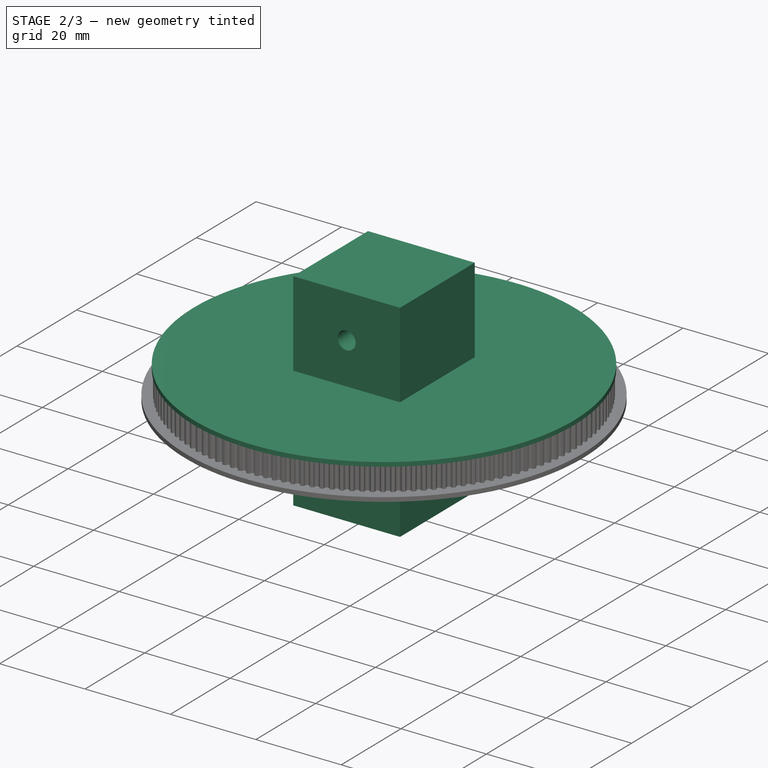
[diagram: stage 2 of 3 — iso view after this stage's code; geometry added in this stage tinted green]
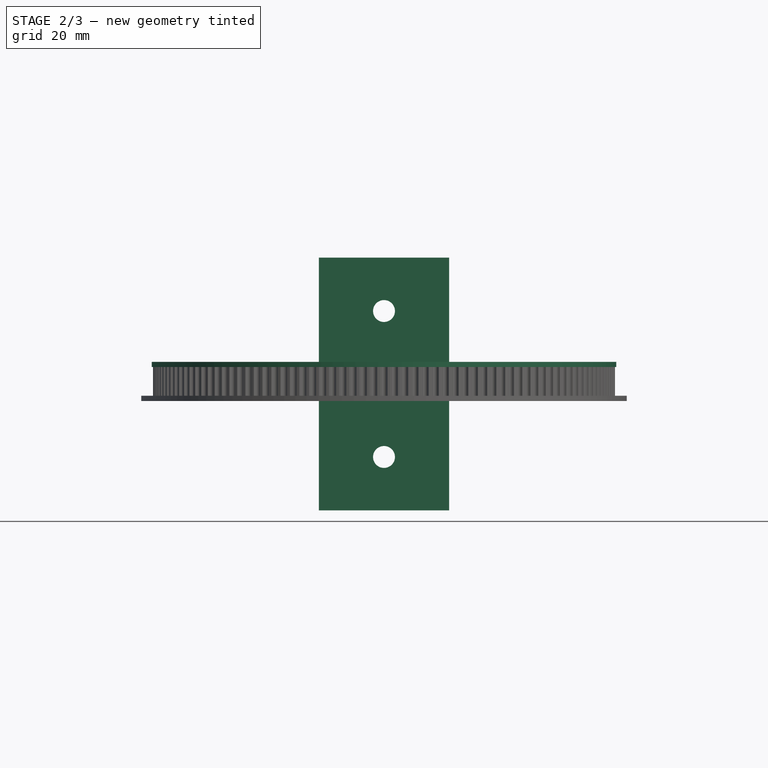
[diagram: stage 2 of 3 — front view after this stage's code; geometry added in this stage tinted green]
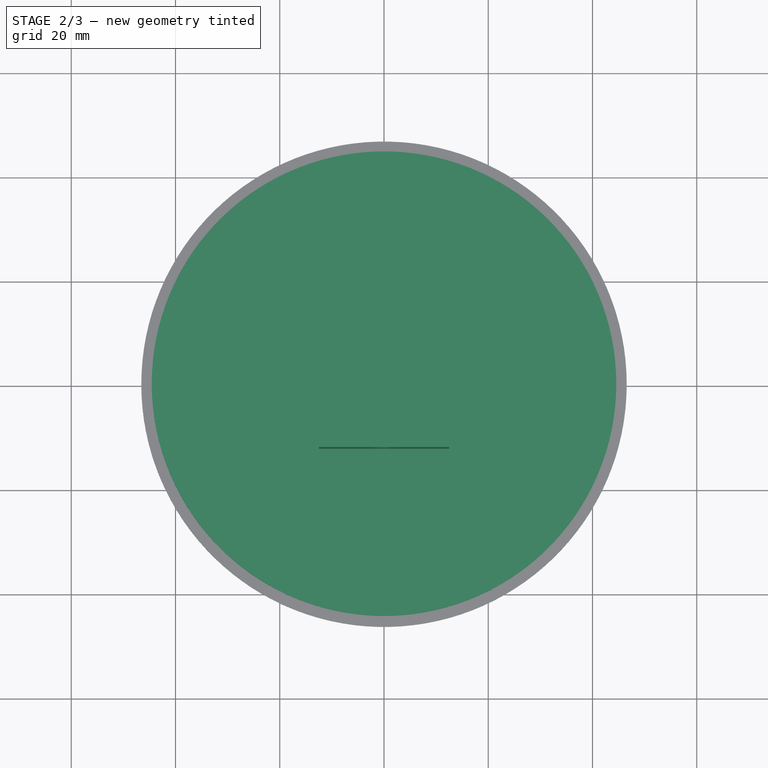
[diagram: stage 2 of 3 — top view after this stage's code; geometry added in this stage tinted green]
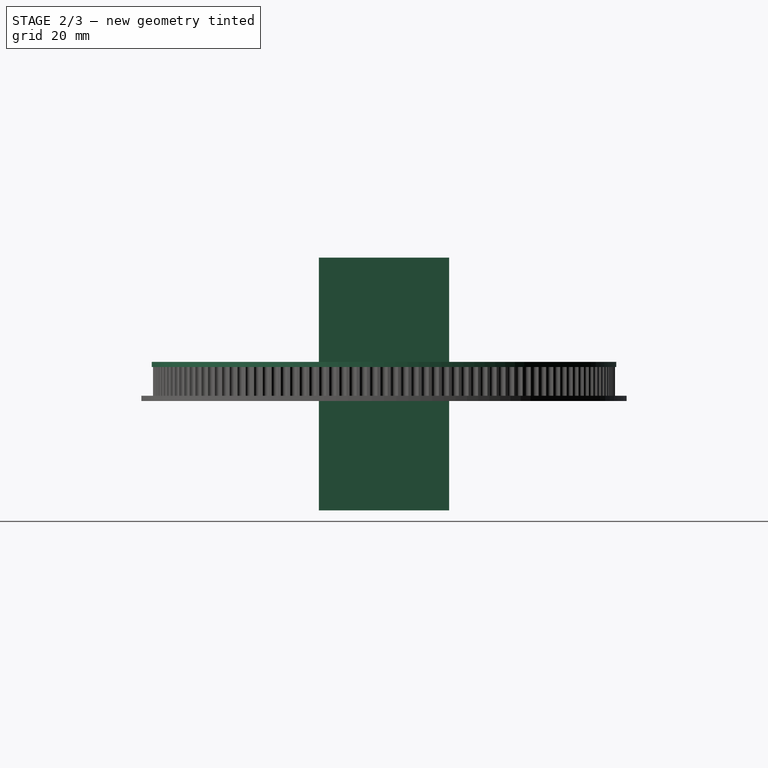
[diagram: stage 2 of 3 — right view after this stage's code; geometry added in this stage tinted green]
FEATURE [Sketcher::SketchObject] SketchTop
  MapMode = 5
  Placement = pos=(0,0,6.5) rot=(0,0,1;0rad)
  sketch-geometry (2):
    g0: Circle CenterX=0 CenterY=0 CenterZ=0 NormalX=0 NormalY=0 NormalZ=1 AngleXU=0 Radius=44.56
    g1: Circle CenterX=0 CenterY=0 CenterZ=0 NormalX=0 NormalY=0 NormalZ=1 AngleXU=0 Radius=2
FEATURE [PartDesign::Pad] PadTop
  BaseFeature = -> PadBase
  Length = 1
  Length2 = 100
  Profile = -> SketchTop
  Type = 0
FEATURE [Sketcher::SketchObject] Sketch
  MapMode = 5
  Placement = pos=(0,0,7.5) rot=(0,0,1;0rad)
  Support = -> [PadTop]
  sketch-geometry (4):
    g0: LineSegment StartX=-12.5 StartY=12.5 StartZ=0 EndX=12.5 EndY=12.5 EndZ=0
    g1: LineSegment StartX=12.5 StartY=12.5 StartZ=0 EndX=12.5 EndY=-12.5 EndZ=0
    g2: LineSegment StartX=12.5 StartY=-12.5 StartZ=0 EndX=-12.5 EndY=-12.5 EndZ=0
    g3: LineSegment StartX=-12.5 StartY=-12.5 StartZ=0 EndX=-12.5 EndY=12.5 EndZ=0
  constraints (11):
    c: Coincident(g0,g1)
    c: Coincident(g1,g2)
    c: Coincident(g2,g3)
    c: Coincident(g3,g0)
    c: Horizontal(g0)
    c: Horizontal(g2)
    c: Vertical(g1)
    c: Vertical(g3)
    c: Symmetric(g0,g2,g-1)
    c: DistanceY(g1,g1) = 25  'thickness'
    c: Equal(g0,g1)
FEATURE [PartDesign::Pad] Pad001
  BaseFeature = -> PadTop
  Length = 20
  Length2 = 28.5
  Profile = -> Sketch
  Type = 4
FEATURE [Sketcher::SketchObject] Sketch001
  ExternalGeometry = -> [Pad001]
  MapMode = 5
  Placement = pos=(0,-12.5,0) rot=(1,0,0;1.5708rad)
  Support = -> [Pad001]
  expr: Constraints[2] = Constraints.M4_dia
  sketch-geometry (3):
    g0: Circle CenterX=0 CenterY=-10.75 CenterZ=0 NormalX=0 NormalY=0 NormalZ=1 AngleXU=0 Radius=2.1
    g1: Circle CenterX=-4e-16 CenterY=17.25 CenterZ=0 NormalX=0 NormalY=0 NormalZ=1 AngleXU=0 Radius=2.1
    g2: GeomPoint X=-1e-16 Y=3.25 Z=0
  constraints (6):
    c: PointOnObject(g0,g-2)
    c: Diameter(g1) = 4.2  'M4_dia'
    c: Diameter(g0) = 4.2
    c: DistanceY(g0,g1) = 28
    c: Symmetric(g1,g0,g2)
    c: Symmetric(g-3,g-4,g2)
FEATURE [PartDesign::Pocket] Pocket
  BaseFeature = -> Pad001
  Length = 5
  Length2 = 100
  Profile = -> Sketch001
  Type = 1
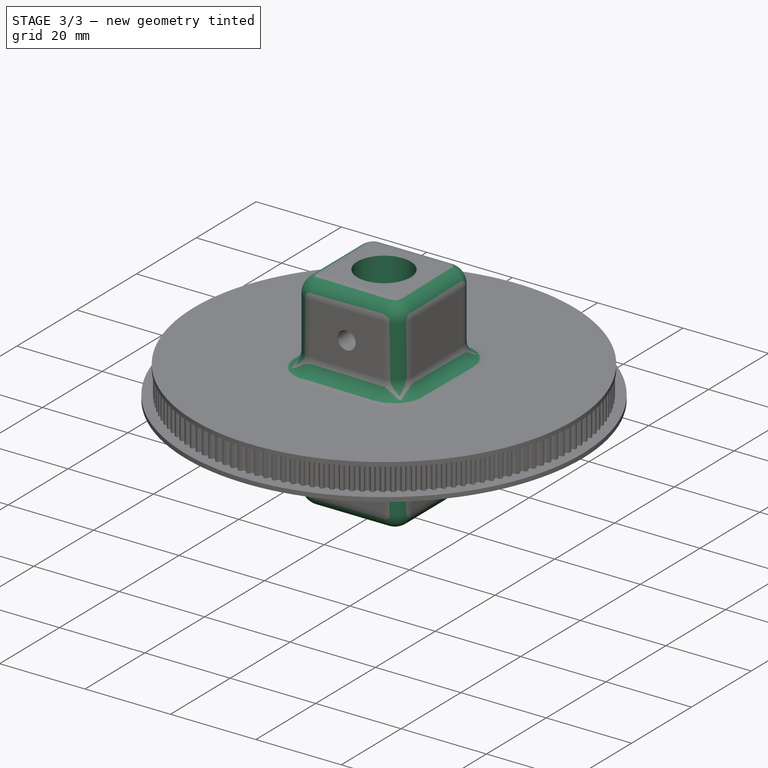
[diagram: stage 3 of 3 — iso view after this stage's code; geometry added in this stage tinted green]
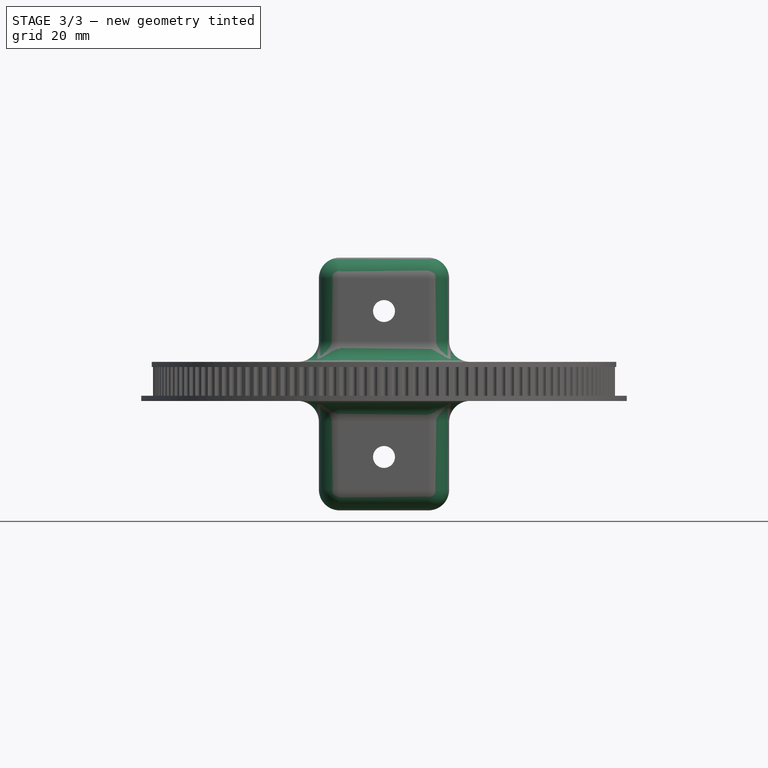
[diagram: stage 3 of 3 — front view after this stage's code; geometry added in this stage tinted green]
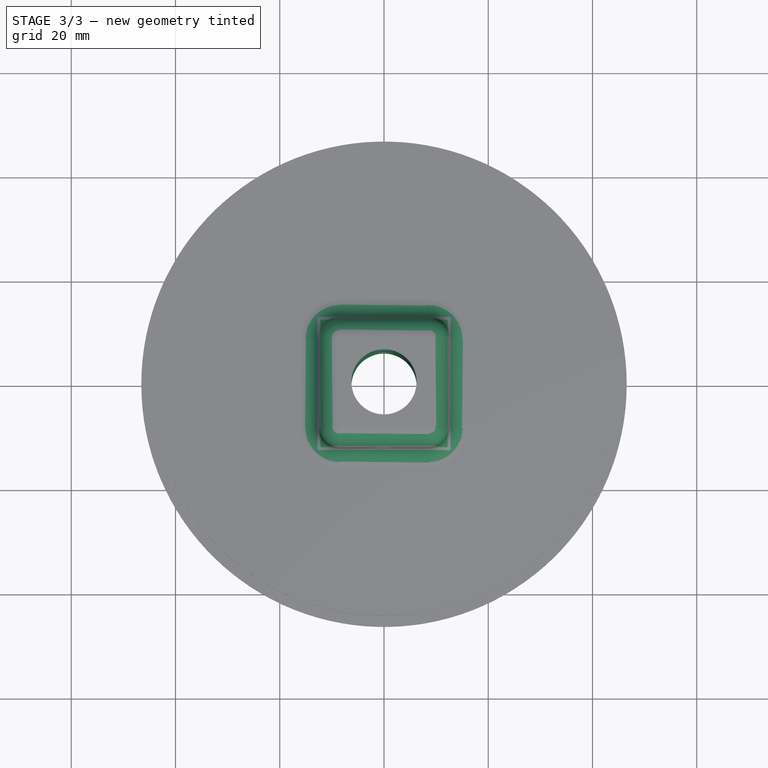
[diagram: stage 3 of 3 — top view after this stage's code; geometry added in this stage tinted green]
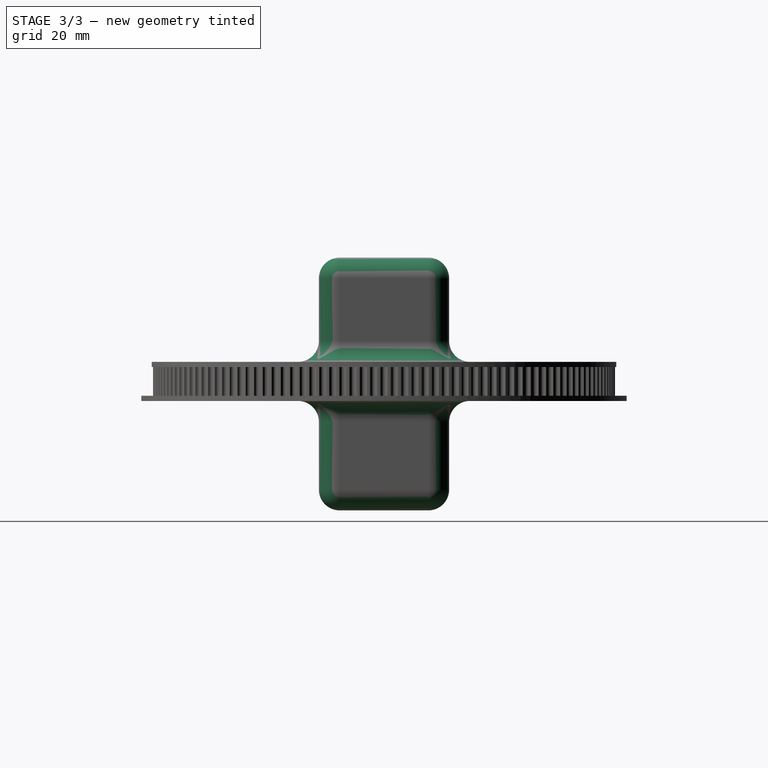
[diagram: stage 3 of 3 — right view after this stage's code; geometry added in this stage tinted green]
FEATURE [Sketcher::SketchObject] Sketch002
  MapMode = 5
  Placement = pos=(0,0,-21) rot=(1,0,0;3.14159rad)
  Support = -> [Pocket]
  sketch-geometry (1):
    g0: Circle CenterX=0 CenterY=0 CenterZ=0 NormalX=0 NormalY=0 NormalZ=1 AngleXU=0 Radius=6.25
  constraints (2):
    c: Coincident(g0,g-1)
    c: Diameter(g0) = 12.5
FEATURE [PartDesign::Pocket] Pocket001
  BaseFeature = -> Pocket
  Length = 5
  Length2 = 100
  Profile = -> Sketch002
  Type = 1
FEATURE [PartDesign::Fillet] Fillet
  Base = -> Pocket001 [Face6,Edge843,Edge852,Edge846,Edge841,Face4,Face858,Edge3403,Edge3390,Face859,Edge3387,Edge3396]
  BaseFeature = -> Pocket001
  Radius = 4
FEATURE [PartDesign::Body] Gear
  Group = -> [SketchGear,Pad,SketchBase,PadBase,SketchTop,PadTop,Sketch,Pad001,Sketch001,Pocket,Sketch002,Pocket001,Fillet]
  Origin = -> Origin
  Tip = -> Fillet
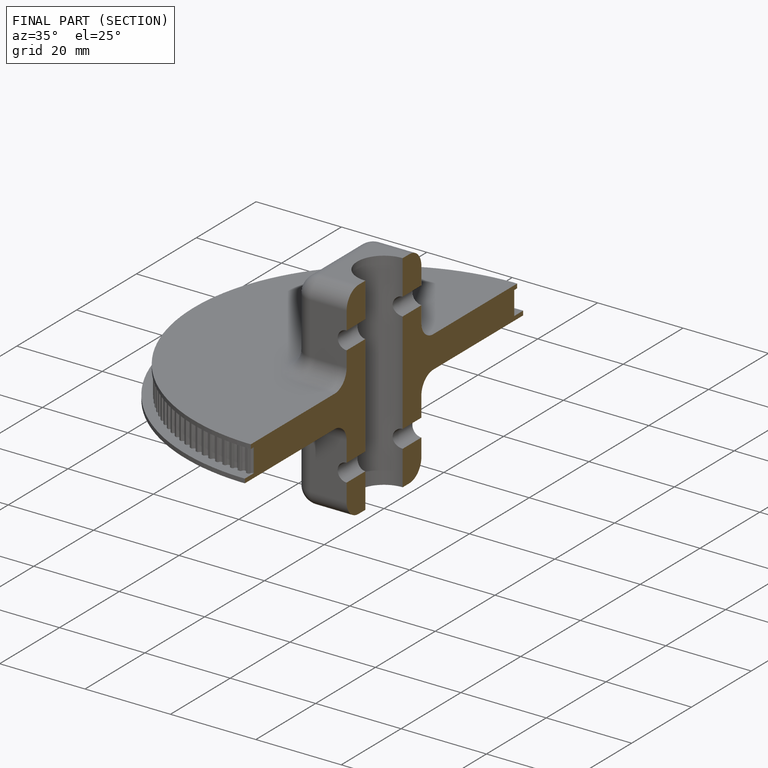
[diagram: finished part — half-section view (interior)]
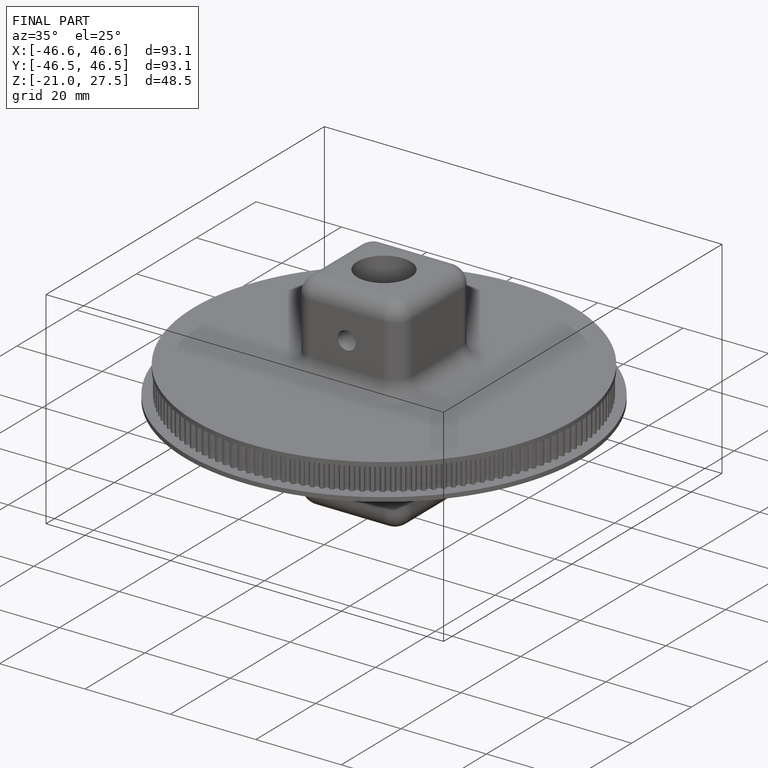
[diagram: finished part — iso view with bounding-box wireframe]
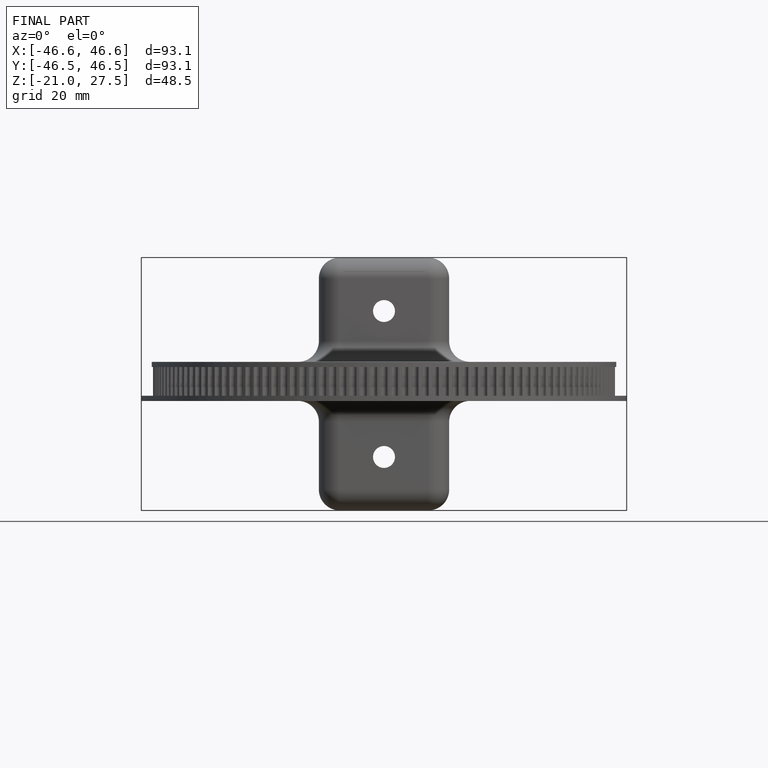
[diagram: finished part — front view with bounding-box wireframe]
